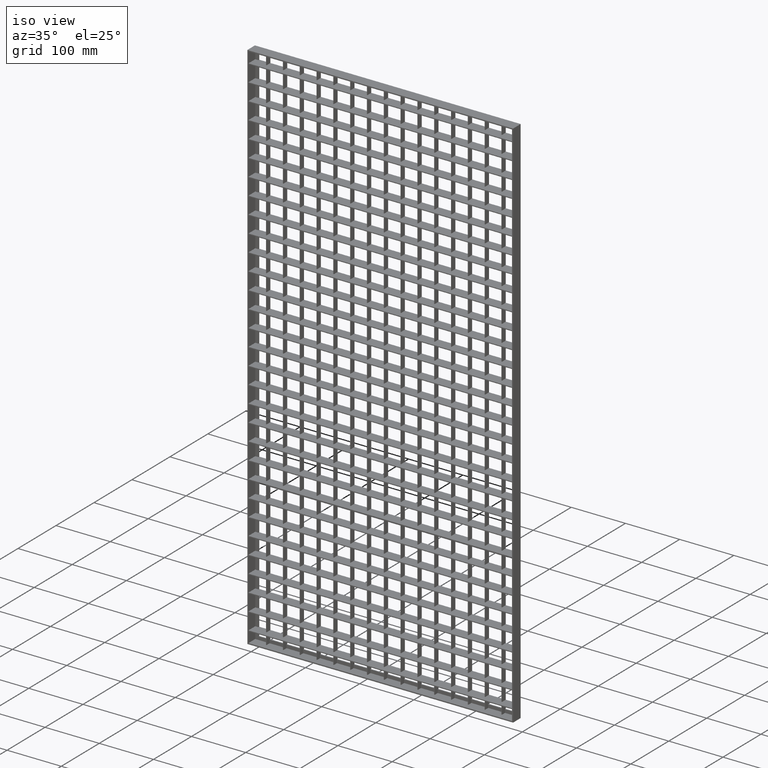
[diagram: clean part render]
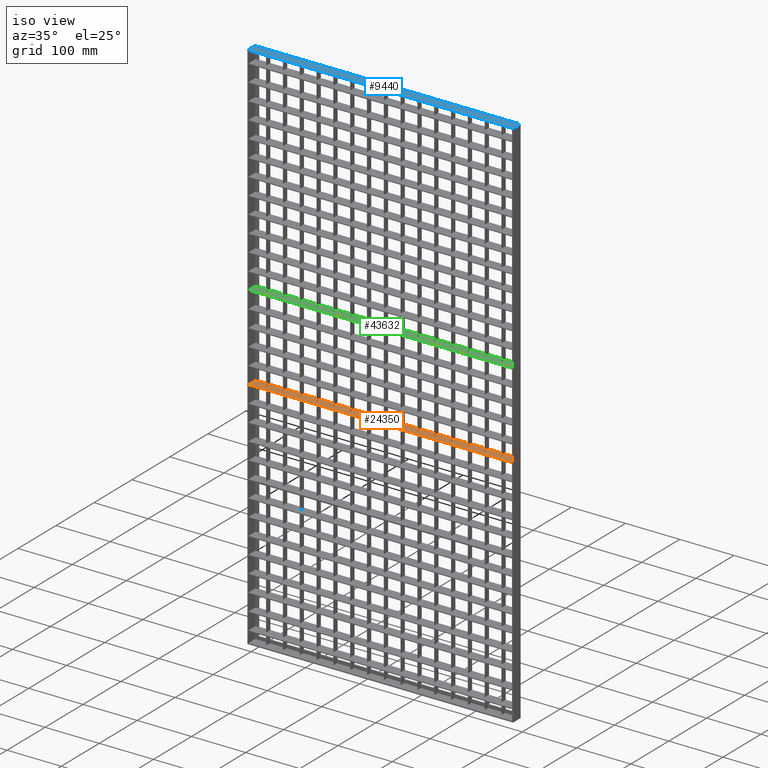
[diagram: same view with three faces highlighted in distinct colors, each labeled with its STEP entity id]
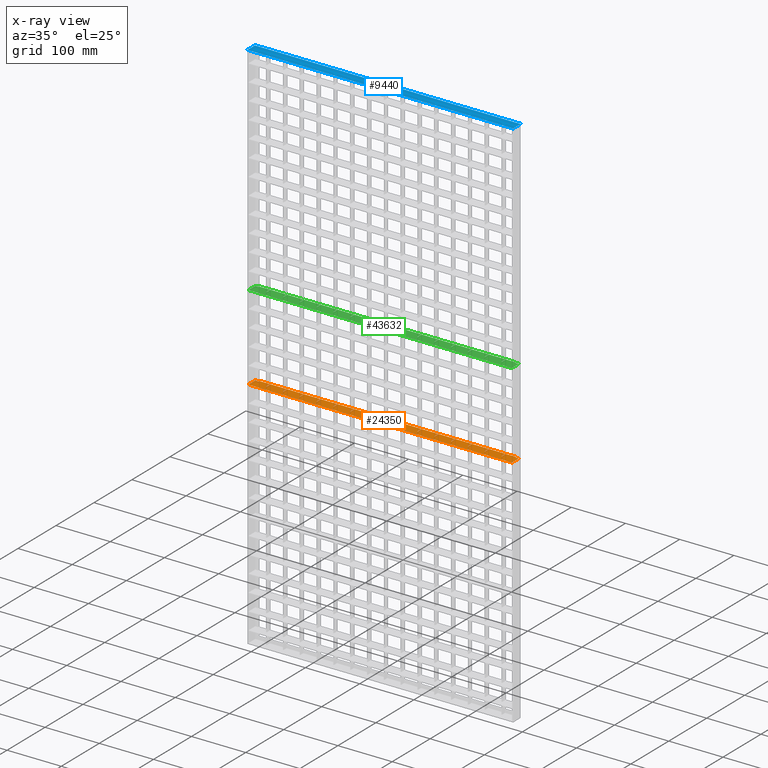
[diagram: x-ray of the same camera — body ghosted, the three highlighted faces saturated]
A machine part, iso view with three faces highlighted in distinct colors.
The next image is the same camera in x-ray (body ghosted, the three faces saturated) — at least one of them is partly hidden behind the body in this view.
Their STEP definitions:

[orange] entity #24350 — the highlighted planar face has unit normal (0, 0, -1).
#248 = EDGE_CURVE ( 'NONE', #6477, #38778, #3916, .T. ) ;
#251 = VECTOR ( 'NONE', #7613, 1000.000000000000000 ) ;
#465 = VECTOR ( 'NONE', #5854, 1000.000000000000000 ) ;
#773 = VERTEX_POINT ( 'NONE', #34400 ) ;
#1165 = VERTEX_POINT ( 'NONE', #53790 ) ;
#1192 = ORIENTED_EDGE ( 'NONE', *, *, #24387, .T. ) ;
#1215 = DIRECTION ( 'NONE',  ( -1.000000000000000000, 0.0000000000000000000, -0.0000000000000000000 ) ) ;
#1785 = CARTESIAN_POINT ( 'NONE',  ( 508.0561711201315800, 10.00000000000015500, -557.2499999999997700 ) ) ;
#1843 = ORIENTED_EDGE ( 'NONE', *, *, #6118, .T. ) ;
#1962 = VECTOR ( 'NONE', #13622, 1000.000000000000000 ) ;
#2046 = LINE ( 'NONE', #57114, #8941 ) ;
#2188 = VECTOR ( 'NONE', #59479, 1000.000000000000000 ) ;
#2278 = CARTESIAN_POINT ( 'NONE',  ( 152.4999999999999700, 1.734723475976807100E-015, -557.2499999999997700 ) ) ;
#2310 = LINE ( 'NONE', #30928, #52189 ) ;
#2687 = ORIENTED_EDGE ( 'NONE', *, *, #31207, .T. ) ;
#2730 = CARTESIAN_POINT ( 'NONE',  ( 508.0561711201315800, 10.00000000000015500, -557.2499999999997700 ) ) ;
#2912 = DIRECTION ( 'NONE',  ( -1.000000000000000000, -3.061616997868382600E-016, 0.0000000000000000000 ) ) ;
#3092 = LINE ( 'NONE', #16498, #465 ) ;
#3124 = DIRECTION ( 'NONE',  ( 0.0000000000000000000, 1.000000000000000000, 0.0000000000000000000 ) ) ;
#3167 = VERTEX_POINT ( 'NONE', #40476 ) ;
#3205 = LINE ( 'NONE', #36265, #44479 ) ;
#3212 = DIRECTION ( 'NONE',  ( -1.000000000000000000, -3.061616997868382600E-016, 0.0000000000000000000 ) ) ;
#3305 = EDGE_CURVE ( 'NONE', #56213, #48884, #53342, .T. ) ;
#3348 = VECTOR ( 'NONE', #37312, 1000.000000000000000 ) ;
#3522 = ORIENTED_EDGE ( 'NONE', *, *, #31626, .T. ) ;
#3652 = CARTESIAN_POINT ( 'NONE',  ( 307.5000000000000000, 6.872965936912012300E-016, -557.2499999999997700 ) ) ;
#3802 = EDGE_CURVE ( 'NONE', #39426, #21131, #38651, .T. ) ;
#3916 = LINE ( 'NONE', #13672, #52965 ) ;
#4097 = ORIENTED_EDGE ( 'NONE', *, *, #9103, .T. ) ;
#4148 = LINE ( 'NONE', #53836, #18832 ) ;
#4169 = VERTEX_POINT ( 'NONE', #50445 ) ;
#4277 = DIRECTION ( 'NONE',  ( -1.000000000000000000, -3.061616997868382600E-016, 0.0000000000000000000 ) ) ;
#4320 = DIRECTION ( 'NONE',  ( -1.000000000000000000, -3.061616997868382600E-016, 0.0000000000000000000 ) ) ;
#4471 = CARTESIAN_POINT ( 'NONE',  ( 151.5000000000000000, 10.00000000000000200, -557.2499999999998900 ) ) ;
#4667 = CARTESIAN_POINT ( 'NONE',  ( 337.5000000000000000, 2.229774192431455100E-015, -557.2499999999998900 ) ) ;
#4756 = ORIENTED_EDGE ( 'NONE', *, *, #49431, .T. ) ;
#4901 = LINE ( 'NONE', #14743, #14407 ) ;
#5032 = VECTOR ( 'NONE', #40760, 1000.000000000000000 ) ;
#5378 = ORIENTED_EDGE ( 'NONE', *, *, #36976, .T. ) ;
#5409 = CARTESIAN_POINT ( 'NONE',  ( 369.5000000000000600, -9.999999999999849000, -557.2499999999997700 ) ) ;
#5442 = LINE ( 'NONE', #33623, #58774 ) ;
#5460 = CARTESIAN_POINT ( 'NONE',  ( 508.0561711201315800, -2.255140518769849200E-014, -557.2499999999997700 ) ) ;
#5729 = EDGE_LOOP ( 'NONE', ( #35262, #44402, #45992, #33048, #52753, #69999, #59827, #18130, #63722, #41991, #41808, #4097, #14978, #66140, #29509, #52150, #39836, #38645, #30871, #51968, #20194, #35442, #34027, #39728, #10934, #68228, #27643, #70567, #4756, #66796, #52019, #38583, #20456, #8009, #40449, #40046, #69609, #7331, #10831, #2687, #50254, #48323, #6078, #46808, #24457, #23928, #42695, #56054, #12911, #3522, #1192, #32780, #10617, #39180, #5378, #1843, #57493, #44946, #8621, #66043, #9831, #42476, #36629, #31146, #53502, #61477, #36589, #23014 ) ) ;
#5854 = DIRECTION ( 'NONE',  ( 0.0000000000000000000, -1.000000000000000000, 0.0000000000000000000 ) ) ;
#5933 = VECTOR ( 'NONE', #4277, 1000.000000000000000 ) ;
#6078 = ORIENTED_EDGE ( 'NONE', *, *, #30492, .T. ) ;
#6115 = CARTESIAN_POINT ( 'NONE',  ( 508.0561711201315800, 9.194034422677077600E-014, -557.2499999999997700 ) ) ;
#6118 = EDGE_CURVE ( 'NONE', #17754, #32800, #56355, .T. ) ;
#6133 = LINE ( 'NONE', #40404, #31966 ) ;
#6477 = VERTEX_POINT ( 'NONE', #70483 ) ;
#7135 = LINE ( 'NONE', #40537, #251 ) ;
#7151 = VERTEX_POINT ( 'NONE', #61918 ) ;
#7172 = LINE ( 'NONE', #11091, #31249 ) ;
#7277 = VECTOR ( 'NONE', #40215, 1000.000000000000000 ) ;
#7331 = ORIENTED_EDGE ( 'NONE', *, *, #56871, .T. ) ;
#7422 = VECTOR ( 'NONE', #19426, 1000.000000000000000 ) ;
#7450 = DIRECTION ( 'NONE',  ( 0.0000000000000000000, 0.0000000000000000000, -1.000000000000000000 ) ) ;
#7613 = DIRECTION ( 'NONE',  ( 0.0000000000000000000, -1.000000000000000000, 0.0000000000000000000 ) ) ;
#7625 = CARTESIAN_POINT ( 'NONE',  ( 90.50000000000002800, 1.734723475976807100E-015, -557.2499999999997700 ) ) ;
#7731 = CARTESIAN_POINT ( 'NONE',  ( 488.0000000000000600, 8.000000000000001800, -557.2499999999997700 ) ) ;
#7791 = CARTESIAN_POINT ( 'NONE',  ( 369.5000000000000600, 7.872294426520972900E-016, -557.2499999999997700 ) ) ;
#7800 = VERTEX_POINT ( 'NONE', #67605 ) ;
#7928 = LINE ( 'NONE', #6115, #64703 ) ;
#8009 = ORIENTED_EDGE ( 'NONE', *, *, #9009, .T. ) ;
#8285 = EDGE_CURVE ( 'NONE', #3167, #60336, #31296, .T. ) ;
#8290 = VECTOR ( 'NONE', #48561, 1000.000000000000000 ) ;
#8336 = LINE ( 'NONE', #13646, #7422 ) ;
#8403 = LINE ( 'NONE', #35288, #37608 ) ;
#8606 = LINE ( 'NONE', #51491, #70504 ) ;
#8621 = ORIENTED_EDGE ( 'NONE', *, *, #52467, .T. ) ;
#8725 = LINE ( 'NONE', #19286, #25941 ) ;
#8744 = DIRECTION ( 'NONE',  ( 1.000000000000000000, 0.0000000000000000000, 0.0000000000000000000 ) ) ;
#8760 = CARTESIAN_POINT ( 'NONE',  ( 508.0561711201315800, 10.00000000000015500, -557.2499999999997700 ) ) ;
#8772 = VERTEX_POINT ( 'NONE', #4471 ) ;
#8787 = CARTESIAN_POINT ( 'NONE',  ( 7.999999999999996400, 8.000000000000001800, -557.2499999999997700 ) ) ;
#8820 = VERTEX_POINT ( 'NONE', #20383 ) ;
#8941 = VECTOR ( 'NONE', #56382, 1000.000000000000000 ) ;
#9009 = EDGE_CURVE ( 'NONE', #12745, #37281, #7928, .T. ) ;
#9103 = EDGE_CURVE ( 'NONE', #773, #22026, #52626, .T. ) ;
#9197 = CARTESIAN_POINT ( 'NONE',  ( 276.4999999999999400, 1.504691907199150600E-015, -557.2499999999997700 ) ) ;
#9228 = VERTEX_POINT ( 'NONE', #14994 ) ;
#9245 = CARTESIAN_POINT ( 'NONE',  ( 508.0561711201315800, -5.030698080332740600E-014, -557.2499999999997700 ) ) ;
#9374 = LINE ( 'NONE', #68095, #59227 ) ;
#9502 = EDGE_CURVE ( 'NONE', #52228, #40436, #29385, .T. ) ;
#9591 = CARTESIAN_POINT ( 'NONE',  ( 508.0561711201315800, -9.999999999999849000, -557.2499999999997700 ) ) ;
#9642 = VERTEX_POINT ( 'NONE', #57709 ) ;
#9821 = EDGE_CURVE ( 'NONE', #26080, #70954, #45649, .T. ) ;
#9831 = ORIENTED_EDGE ( 'NONE', *, *, #12129, .F. ) ;
#9972 = CARTESIAN_POINT ( 'NONE',  ( 213.4999999999999700, 1.758526193928528200E-015, -557.2499999999997700 ) ) ;
#9988 = VERTEX_POINT ( 'NONE', #49508 ) ;
#10127 = CARTESIAN_POINT ( 'NONE',  ( 90.50000000000002800, -9.999999999999849000, -557.2499999999997700 ) ) ;
#10344 = LINE ( 'NONE', #63605, #33517 ) ;
#10617 = ORIENTED_EDGE ( 'NONE', *, *, #64804, .T. ) ;
#10628 = CARTESIAN_POINT ( 'NONE',  ( 307.5000000000000000, 10.00000000000009400, -557.2499999999997700 ) ) ;
#10831 = ORIENTED_EDGE ( 'NONE', *, *, #71077, .T. ) ;
#10872 = CARTESIAN_POINT ( 'NONE',  ( 121.5000000000000000, 10.00000000000003700, -557.2499999999997700 ) ) ;
#10934 = ORIENTED_EDGE ( 'NONE', *, *, #13315, .F. ) ;
#10980 = LINE ( 'NONE', #15171, #20430 ) ;
#11059 = EDGE_CURVE ( 'NONE', #13045, #68383, #10980, .T. ) ;
#11091 = CARTESIAN_POINT ( 'NONE',  ( 508.0561711201315800, 1.196959198423996900E-013, -557.2499999999997700 ) ) ;
#11167 = VECTOR ( 'NONE', #19999, 1000.000000000000000 ) ;
#11416 = VECTOR ( 'NONE', #46839, 1000.000000000000000 ) ;
#11615 = LINE ( 'NONE', #53952, #2188 ) ;
#11886 = CARTESIAN_POINT ( 'NONE',  ( 399.4999999999999400, 2.229774192431455100E-015, -557.2499999999997700 ) ) ;
#12129 = EDGE_CURVE ( 'NONE', #42568, #21131, #67685, .T. ) ;
#12219 = DIRECTION ( 'NONE',  ( 0.0000000000000000000, -1.000000000000000000, 0.0000000000000000000 ) ) ;
#12557 = CARTESIAN_POINT ( 'NONE',  ( 120.5000000000000000, 1.041063729381511900E-015, -557.2499999999997700 ) ) ;
#12745 = VERTEX_POINT ( 'NONE', #36114 ) ;
#12746 = VERTEX_POINT ( 'NONE', #64492 ) ;
#12809 = DIRECTION ( 'NONE',  ( 0.0000000000000000000, -1.000000000000000000, 0.0000000000000000000 ) ) ;
#12900 = CARTESIAN_POINT ( 'NONE',  ( 369.5000000000000600, 10.00000000000011400, -557.2499999999997700 ) ) ;
#12911 = ORIENTED_EDGE ( 'NONE', *, *, #27504, .T. ) ;
#12990 = VECTOR ( 'NONE', #32024, 1000.000000000000000 ) ;
#13005 = DIRECTION ( 'NONE',  ( -1.000000000000000000, -3.061616997868381700E-016, 0.0000000000000000000 ) ) ;
#13045 = VERTEX_POINT ( 'NONE', #10872 ) ;
#13146 = VERTEX_POINT ( 'NONE', #62041 ) ;
#13315 = EDGE_CURVE ( 'NONE', #47760, #8820, #22311, .T. ) ;
#13410 = EDGE_CURVE ( 'NONE', #42092, #6477, #20590, .T. ) ;
#13622 = DIRECTION ( 'NONE',  ( 0.0000000000000000000, 1.000000000000000000, 0.0000000000000000000 ) ) ;
#13646 = CARTESIAN_POINT ( 'NONE',  ( 28.49999999999997200, -9.999999999999849000, -557.2499999999997700 ) ) ;
#13672 = CARTESIAN_POINT ( 'NONE',  ( 2.000000000000003600, -10.00000000000000000, -557.2499999999997700 ) ) ;
#13844 = VECTOR ( 'NONE', #32783, 1000.000000000000000 ) ;
#13976 = VECTOR ( 'NONE', #31961, 1000.000000000000000 ) ;
#13978 = CARTESIAN_POINT ( 'NONE',  ( 306.5000000000000000, 2.229774192431455100E-015, -557.2499999999998900 ) ) ;
#14040 = LINE ( 'NONE', #68520, #25191 ) ;
#14103 = DIRECTION ( 'NONE',  ( 0.0000000000000000000, -1.000000000000000000, 0.0000000000000000000 ) ) ;
#14407 = VECTOR ( 'NONE', #8744, 1000.000000000000000 ) ;
#14425 = DIRECTION ( 'NONE',  ( -1.000000000000000000, -3.061616997868382600E-016, 0.0000000000000000000 ) ) ;
#14743 = CARTESIAN_POINT ( 'NONE',  ( 2.000000000000003600, 8.000000000000001800, -557.2499999999997700 ) ) ;
#14765 = VECTOR ( 'NONE', #38533, 1000.000000000000000 ) ;
#14837 = DIRECTION ( 'NONE',  ( -1.000000000000000000, -3.061616997868381200E-016, 0.0000000000000000000 ) ) ;
#14978 = ORIENTED_EDGE ( 'NONE', *, *, #70001, .F. ) ;
#14994 = CARTESIAN_POINT ( 'NONE',  ( 338.5000000000000000, 10.00000000000010300, -557.2499999999997700 ) ) ;
#15022 = LINE ( 'NONE', #67160, #7277 ) ;
#15062 = CARTESIAN_POINT ( 'NONE',  ( 508.0561711201315800, 8.153200337090993300E-014, -557.2499999999997700 ) ) ;
#15155 = VECTOR ( 'NONE', #13005, 1000.000000000000000 ) ;
#15171 = CARTESIAN_POINT ( 'NONE',  ( 121.5000000000000000, -9.999999999999849000, -557.2499999999997700 ) ) ;
#15389 = CARTESIAN_POINT ( 'NONE',  ( 28.49999999999997200, 1.734723475976807100E-015, -557.2499999999997700 ) ) ;
#15660 = VERTEX_POINT ( 'NONE', #28246 ) ;
#15661 = LINE ( 'NONE', #59505, #23389 ) ;
#15706 = LINE ( 'NONE', #25661, #11416 ) ;
#15755 = VERTEX_POINT ( 'NONE', #2278 ) ;
#16370 = EDGE_CURVE ( 'NONE', #9988, #4169, #14040, .T. ) ;
#16444 = DIRECTION ( 'NONE',  ( -1.000000000000000000, -3.061616997868382600E-016, 0.0000000000000000000 ) ) ;
#16498 = CARTESIAN_POINT ( 'NONE',  ( 183.5000000000000000, -9.999999999999849000, -557.2499999999997700 ) ) ;
#16567 = CARTESIAN_POINT ( 'NONE',  ( 244.5000000000000000, -9.999999999999849000, -557.2499999999997700 ) ) ;
#16604 = EDGE_CURVE ( 'NONE', #12746, #7800, #33808, .T. ) ;
#17157 = DIRECTION ( 'NONE',  ( 0.0000000000000000000, 1.000000000000000000, 0.0000000000000000000 ) ) ;
#17286 = CARTESIAN_POINT ( 'NONE',  ( 89.49999999999997200, 1.958391891850345000E-015, -557.2499999999997700 ) ) ;
#17527 = CARTESIAN_POINT ( 'NONE',  ( 59.50000000000000000, 1.734723475976807100E-015, -557.2499999999997700 ) ) ;
#17754 = VERTEX_POINT ( 'NONE', #26161 ) ;
#17825 = VECTOR ( 'NONE', #38821, 1000.000000000000000 ) ;
#18125 = LINE ( 'NONE', #67124, #45615 ) ;
#18130 = ORIENTED_EDGE ( 'NONE', *, *, #9502, .T. ) ;
#18283 = VERTEX_POINT ( 'NONE', #65304 ) ;
#18466 = CARTESIAN_POINT ( 'NONE',  ( 508.0561711201315800, -6.938893903907228400E-014, -557.2499999999997700 ) ) ;
#18636 = CARTESIAN_POINT ( 'NONE',  ( 482.0000000000001100, 8.000000000000001800, -557.2499999999997700 ) ) ;
#18832 = VECTOR ( 'NONE', #4320, 1000.000000000000000 ) ;
#18850 = VERTEX_POINT ( 'NONE', #4667 ) ;
#19250 = CARTESIAN_POINT ( 'NONE',  ( 27.49999999999996800, 2.058324740811253300E-015, -557.2499999999997700 ) ) ;
#19267 = EDGE_CURVE ( 'NONE', #52228, #67762, #15706, .T. ) ;
#19286 = CARTESIAN_POINT ( 'NONE',  ( 245.0000000000000000, 8.000000000000001800, -557.2499999999997700 ) ) ;
#19320 = DIRECTION ( 'NONE',  ( -1.000000000000000000, -3.061616997868382600E-016, 0.0000000000000000000 ) ) ;
#19352 = LINE ( 'NONE', #18636, #61460 ) ;
#19426 = DIRECTION ( 'NONE',  ( 0.0000000000000000000, -1.000000000000000000, 0.0000000000000000000 ) ) ;
#19796 = VECTOR ( 'NONE', #3124, 1000.000000000000000 ) ;
#19972 = EDGE_CURVE ( 'NONE', #64606, #15755, #56006, .T. ) ;
#19999 = DIRECTION ( 'NONE',  ( 0.0000000000000000000, -1.000000000000000000, 0.0000000000000000000 ) ) ;
#20029 = VECTOR ( 'NONE', #47684, 1000.000000000000000 ) ;
#20194 = ORIENTED_EDGE ( 'NONE', *, *, #45937, .F. ) ;
#20323 = VECTOR ( 'NONE', #14837, 1000.000000000000000 ) ;
#20372 = CARTESIAN_POINT ( 'NONE',  ( 430.5000000000000000, 10.00000000000013000, -557.2499999999997700 ) ) ;
#20383 = CARTESIAN_POINT ( 'NONE',  ( 276.4999999999999400, 10.00000000000008300, -557.2499999999997700 ) ) ;
#20430 = VECTOR ( 'NONE', #42985, 1000.000000000000000 ) ;
#20456 = ORIENTED_EDGE ( 'NONE', *, *, #25584, .T. ) ;
#20590 = LINE ( 'NONE', #9591, #5933 ) ;
#21131 = VERTEX_POINT ( 'NONE', #57635 ) ;
#21461 = VERTEX_POINT ( 'NONE', #69195 ) ;
#21949 = EDGE_CURVE ( 'NONE', #42092, #67398, #57537, .T. ) ;
#22026 = VERTEX_POINT ( 'NONE', #12900 ) ;
#22055 = CARTESIAN_POINT ( 'NONE',  ( 7.999999999999996400, 8.000000000000001800, -557.2499999999997700 ) ) ;
#22117 = CARTESIAN_POINT ( 'NONE',  ( 368.5000000000000600, -9.999999999999849000, -557.2499999999997700 ) ) ;
#22311 = LINE ( 'NONE', #36036, #19796 ) ;
#22763 = EDGE_CURVE ( 'NONE', #38778, #42568, #4901, .T. ) ;
#22774 = DIRECTION ( 'NONE',  ( 1.000000000000000000, -3.061616997868381700E-016, 0.0000000000000000000 ) ) ;
#22852 = CARTESIAN_POINT ( 'NONE',  ( 508.0561711201315800, 1.110223024625156500E-013, -557.2499999999997700 ) ) ;
#23014 = ORIENTED_EDGE ( 'NONE', *, *, #65551, .T. ) ;
#23201 = EDGE_CURVE ( 'NONE', #37281, #9988, #58999, .T. ) ;
#23227 = VECTOR ( 'NONE', #2912, 1000.000000000000000 ) ;
#23269 = CARTESIAN_POINT ( 'NONE',  ( 338.5000000000000000, 1.604624756160052900E-015, -557.2499999999997700 ) ) ;
#23322 = EDGE_CURVE ( 'NONE', #54649, #54893, #43446, .T. ) ;
#23389 = VECTOR ( 'NONE', #53256, 1000.000000000000000 ) ;
#23879 = CARTESIAN_POINT ( 'NONE',  ( 2.000000000000003600, 8.000000000000001800, -557.2499999999997700 ) ) ;
#23928 = ORIENTED_EDGE ( 'NONE', *, *, #28777, .T. ) ;
#24049 = CARTESIAN_POINT ( 'NONE',  ( 508.0561711201315800, -9.999999999999849000, -557.2499999999997700 ) ) ;
#24350 = ADVANCED_FACE ( 'NONE', ( #46549 ), #34847, .F. ) ;
#24387 = EDGE_CURVE ( 'NONE', #61673, #12746, #32848, .T. ) ;
#24457 = ORIENTED_EDGE ( 'NONE', *, *, #11059, .T. ) ;
#24480 = EDGE_CURVE ( 'NONE', #53371, #47760, #31040, .T. ) ;
#24521 = CARTESIAN_POINT ( 'NONE',  ( 337.5000000000000000, 10.00000000000010300, -557.2499999999997700 ) ) ;
#24789 = DIRECTION ( 'NONE',  ( 1.000000000000000000, 0.0000000000000000000, 0.0000000000000000000 ) ) ;
#24924 = CARTESIAN_POINT ( 'NONE',  ( 58.50000000000000000, -9.999999999999849000, -557.2499999999997700 ) ) ;
#24940 = DIRECTION ( 'NONE',  ( 0.0000000000000000000, 1.000000000000000000, 0.0000000000000000000 ) ) ;
#25108 = CARTESIAN_POINT ( 'NONE',  ( 508.0561711201315800, 10.00000000000015500, -557.2499999999997700 ) ) ;
#25163 = DIRECTION ( 'NONE',  ( 0.0000000000000000000, 1.000000000000000000, 0.0000000000000000000 ) ) ;
#25191 = VECTOR ( 'NONE', #52430, 1000.000000000000000 ) ;
#25506 = VECTOR ( 'NONE', #54964, 1000.000000000000000 ) ;
#25584 = EDGE_CURVE ( 'NONE', #48884, #12745, #27507, .T. ) ;
#25661 = CARTESIAN_POINT ( 'NONE',  ( 430.5000000000000000, -9.999999999999849000, -557.2499999999997700 ) ) ;
#25861 = LINE ( 'NONE', #64485, #12990 ) ;
#25941 = VECTOR ( 'NONE', #24789, 1000.000000000000000 ) ;
#26080 = VERTEX_POINT ( 'NONE', #43813 ) ;
#26161 = CARTESIAN_POINT ( 'NONE',  ( 58.50000000000000000, 10.00000000000000200, -557.2499999999997700 ) ) ;
#26241 = EDGE_CURVE ( 'NONE', #44598, #55444, #9374, .T. ) ;
#26267 = CARTESIAN_POINT ( 'NONE',  ( 182.4999999999999400, 9.411308804205788300E-016, -557.2499999999997700 ) ) ;
#26675 = VECTOR ( 'NONE', #33353, 1000.000000000000000 ) ;
#26708 = LINE ( 'NONE', #38526, #13844 ) ;
#27004 = CARTESIAN_POINT ( 'NONE',  ( 508.0561711201315800, 10.00000000000015500, -557.2499999999997700 ) ) ;
#27300 = EDGE_CURVE ( 'NONE', #67762, #7151, #34072, .T. ) ;
#27310 = EDGE_CURVE ( 'NONE', #13146, #56213, #55555, .T. ) ;
#27504 = EDGE_CURVE ( 'NONE', #50206, #54027, #42649, .T. ) ;
#27507 = LINE ( 'NONE', #55193, #26675 ) ;
#27587 = EDGE_CURVE ( 'NONE', #43874, #50206, #43481, .T. ) ;
#27643 = ORIENTED_EDGE ( 'NONE', *, *, #30869, .F. ) ;
#27841 = VECTOR ( 'NONE', #55733, 1000.000000000000000 ) ;
#27984 = CARTESIAN_POINT ( 'NONE',  ( 151.4999999999999700, 1.858459042889448800E-015, -557.2499999999997700 ) ) ;
#28009 = DIRECTION ( 'NONE',  ( -1.000000000000000000, -3.061616997868381200E-016, 0.0000000000000000000 ) ) ;
#28246 = CARTESIAN_POINT ( 'NONE',  ( 183.5000000000000000, 1.734723475976807100E-015, -557.2499999999997700 ) ) ;
#28358 = EDGE_CURVE ( 'NONE', #62838, #1165, #19352, .T. ) ;
#28777 = EDGE_CURVE ( 'NONE', #68383, #57583, #7172, .T. ) ;
#29351 = CARTESIAN_POINT ( 'NONE',  ( 508.0561711201315800, 1.387778780781445700E-013, -557.2499999999997700 ) ) ;
#29361 = DIRECTION ( 'NONE',  ( -1.000000000000000000, -3.061616997868382600E-016, 0.0000000000000000000 ) ) ;
#29385 = LINE ( 'NONE', #49352, #14765 ) ;
#29509 = ORIENTED_EDGE ( 'NONE', *, *, #8285, .F. ) ;
#29746 = VECTOR ( 'NONE', #53631, 1000.000000000000000 ) ;
#30127 = DIRECTION ( 'NONE',  ( 0.0000000000000000000, -1.000000000000000000, 0.0000000000000000000 ) ) ;
#30492 = EDGE_CURVE ( 'NONE', #60399, #8772, #10344, .T. ) ;
#30776 = CARTESIAN_POINT ( 'NONE',  ( 275.4999999999999400, 2.229774192431455100E-015, -557.2499999999998900 ) ) ;
#30869 = EDGE_CURVE ( 'NONE', #44598, #53371, #44652, .T. ) ;
#30871 = ORIENTED_EDGE ( 'NONE', *, *, #57580, .F. ) ;
#30928 = CARTESIAN_POINT ( 'NONE',  ( 307.5000000000000000, -9.999999999999849000, -557.2499999999997700 ) ) ;
#31040 = LINE ( 'NONE', #18466, #69708 ) ;
#31128 = CARTESIAN_POINT ( 'NONE',  ( 152.4999999999999700, -9.999999999999849000, -557.2499999999997700 ) ) ;
#31146 = ORIENTED_EDGE ( 'NONE', *, *, #13410, .F. ) ;
#31207 = EDGE_CURVE ( 'NONE', #37413, #64606, #4148, .T. ) ;
#31249 = VECTOR ( 'NONE', #38961, 1000.000000000000000 ) ;
#31274 = CARTESIAN_POINT ( 'NONE',  ( 306.5000000000000000, -9.999999999999849000, -557.2499999999997700 ) ) ;
#31296 = LINE ( 'NONE', #22117, #53638 ) ;
#31598 = CARTESIAN_POINT ( 'NONE',  ( 214.5000000000000300, 10.00000000000006400, -557.2499999999997700 ) ) ;
#31626 = EDGE_CURVE ( 'NONE', #54027, #61673, #8403, .T. ) ;
#31961 = DIRECTION ( 'NONE',  ( -1.000000000000000000, -3.061616997868382600E-016, 0.0000000000000000000 ) ) ;
#31966 = VECTOR ( 'NONE', #29361, 1000.000000000000000 ) ;
#32024 = DIRECTION ( 'NONE',  ( 0.0000000000000000000, -1.000000000000000000, 0.0000000000000000000 ) ) ;
#32182 = CARTESIAN_POINT ( 'NONE',  ( 90.50000000000002800, 10.00000000000002700, -557.2499999999997700 ) ) ;
#32780 = ORIENTED_EDGE ( 'NONE', *, *, #16604, .T. ) ;
#32783 = DIRECTION ( 'NONE',  ( -1.000000000000000000, -3.061616997868381700E-016, 0.0000000000000000000 ) ) ;
#32800 = VERTEX_POINT ( 'NONE', #41540 ) ;
#32839 = VERTEX_POINT ( 'NONE', #19250 ) ;
#32848 = LINE ( 'NONE', #67074, #37107 ) ;
#33048 = ORIENTED_EDGE ( 'NONE', *, *, #40755, .T. ) ;
#33230 = VECTOR ( 'NONE', #37375, 1000.000000000000000 ) ;
#33296 = VERTEX_POINT ( 'NONE', #46505 ) ;
#33353 = DIRECTION ( 'NONE',  ( 0.0000000000000000000, -1.000000000000000000, 0.0000000000000000000 ) ) ;
#33438 = CARTESIAN_POINT ( 'NONE',  ( 27.49999999999999600, 10.00000000000000200, -557.2499999999997700 ) ) ;
#33517 = VECTOR ( 'NONE', #41919, 1000.000000000000000 ) ;
#33623 = CARTESIAN_POINT ( 'NONE',  ( 59.50000000000000000, -9.999999999999849000, -557.2499999999997700 ) ) ;
#33808 = LINE ( 'NONE', #63972, #13976 ) ;
#33830 = EDGE_CURVE ( 'NONE', #57071, #63129, #54450, .T. ) ;
#34027 = ORIENTED_EDGE ( 'NONE', *, *, #9821, .F. ) ;
#34069 = DIRECTION ( 'NONE',  ( 1.000000000000000000, -3.061616997868381200E-016, 0.0000000000000000000 ) ) ;
#34072 = LINE ( 'NONE', #5460, #52152 ) ;
#34081 = LINE ( 'NONE', #1785, #40958 ) ;
#34400 = CARTESIAN_POINT ( 'NONE',  ( 399.4999999999999400, 10.00000000000012100, -557.2499999999997700 ) ) ;
#34788 = EDGE_CURVE ( 'NONE', #18850, #46875, #53491, .T. ) ;
#34847 = PLANE ( 'NONE',  #49363 ) ;
#35197 = VECTOR ( 'NONE', #50109, 1000.000000000000000 ) ;
#35262 = ORIENTED_EDGE ( 'NONE', *, *, #47508, .F. ) ;
#35288 = CARTESIAN_POINT ( 'NONE',  ( 508.0561711201315800, 1.301042606982605300E-013, -557.2499999999997700 ) ) ;
#35412 = VECTOR ( 'NONE', #14103, 1000.000000000000000 ) ;
#35442 = ORIENTED_EDGE ( 'NONE', *, *, #41917, .F. ) ;
#35571 = CARTESIAN_POINT ( 'NONE',  ( 244.5000000000000000, 10.00000000000000200, -557.2499999999998900 ) ) ;
#35812 = LINE ( 'NONE', #38425, #70203 ) ;
#36036 = CARTESIAN_POINT ( 'NONE',  ( 276.4999999999999400, -9.999999999999849000, -557.2499999999997700 ) ) ;
#36114 = CARTESIAN_POINT ( 'NONE',  ( 214.5000000000000300, 1.734723475976807100E-015, -557.2499999999997700 ) ) ;
#36265 = CARTESIAN_POINT ( 'NONE',  ( 508.0561711201315800, 10.00000000000015500, -557.2499999999997700 ) ) ;
#36589 = ORIENTED_EDGE ( 'NONE', *, *, #28358, .F. ) ;
#36629 = ORIENTED_EDGE ( 'NONE', *, *, #248, .F. ) ;
#36976 = EDGE_CURVE ( 'NONE', #54893, #17754, #60450, .T. ) ;
#37107 = VECTOR ( 'NONE', #62281, 1000.000000000000000 ) ;
#37281 = VERTEX_POINT ( 'NONE', #9972 ) ;
#37312 = DIRECTION ( 'NONE',  ( 1.000000000000000000, -3.061616997868381700E-016, 0.0000000000000000000 ) ) ;
#37375 = DIRECTION ( 'NONE',  ( -1.000000000000000000, -3.061616997868382600E-016, 0.0000000000000000000 ) ) ;
#37413 = VERTEX_POINT ( 'NONE', #71243 ) ;
#37608 = VECTOR ( 'NONE', #41524, 1000.000000000000000 ) ;
#38425 = CARTESIAN_POINT ( 'NONE',  ( 338.5000000000000000, -9.999999999999849000, -557.2499999999997700 ) ) ;
#38526 = CARTESIAN_POINT ( 'NONE',  ( 508.0561711201315800, 1.491862189340054100E-013, -557.2499999999997700 ) ) ;
#38533 = DIRECTION ( 'NONE',  ( -1.000000000000000000, -3.061616997868382600E-016, 0.0000000000000000000 ) ) ;
#38583 = ORIENTED_EDGE ( 'NONE', *, *, #3305, .T. ) ;
#38600 = CARTESIAN_POINT ( 'NONE',  ( 120.5000000000000000, 10.00000000000000200, -557.2499999999998900 ) ) ;
#38645 = ORIENTED_EDGE ( 'NONE', *, *, #34788, .F. ) ;
#38651 = LINE ( 'NONE', #46173, #23227 ) ;
#38723 = VECTOR ( 'NONE', #3212, 1000.000000000000000 ) ;
#38778 = VERTEX_POINT ( 'NONE', #23879 ) ;
#38821 = DIRECTION ( 'NONE',  ( 0.0000000000000000000, 1.000000000000000000, 0.0000000000000000000 ) ) ;
#38961 = DIRECTION ( 'NONE',  ( -1.000000000000000000, -3.061616997868381200E-016, 0.0000000000000000000 ) ) ;
#39180 = ORIENTED_EDGE ( 'NONE', *, *, #23322, .T. ) ;
#39302 = CARTESIAN_POINT ( 'NONE',  ( 27.49999999999996800, -9.999999999999849000, -557.2499999999997700 ) ) ;
#39426 = VERTEX_POINT ( 'NONE', #33438 ) ;
#39485 = LINE ( 'NONE', #47184, #3348 ) ;
#39728 = ORIENTED_EDGE ( 'NONE', *, *, #45514, .T. ) ;
#39836 = ORIENTED_EDGE ( 'NONE', *, *, #61519, .F. ) ;
#40046 = ORIENTED_EDGE ( 'NONE', *, *, #16370, .T. ) ;
#40114 = LINE ( 'NONE', #8760, #71069 ) ;
#40215 = DIRECTION ( 'NONE',  ( 0.0000000000000000000, 1.000000000000000000, 0.0000000000000000000 ) ) ;
#40404 = CARTESIAN_POINT ( 'NONE',  ( 508.0561711201315800, 10.00000000000015500, -557.2499999999997700 ) ) ;
#40436 = VERTEX_POINT ( 'NONE', #64812 ) ;
#40449 = ORIENTED_EDGE ( 'NONE', *, *, #23201, .T. ) ;
#40476 = CARTESIAN_POINT ( 'NONE',  ( 368.5000000000000600, 10.00000000000011200, -557.2499999999997700 ) ) ;
#40537 = CARTESIAN_POINT ( 'NONE',  ( 461.5000000000000000, -9.999999999999849000, -557.2499999999997700 ) ) ;
#40755 = EDGE_CURVE ( 'NONE', #18283, #54520, #34081, .T. ) ;
#40760 = DIRECTION ( 'NONE',  ( 0.0000000000000000000, 1.000000000000000000, 0.0000000000000000000 ) ) ;
#40929 = LINE ( 'NONE', #41497, #59015 ) ;
#40958 = VECTOR ( 'NONE', #57517, 1000.000000000000000 ) ;
#41497 = CARTESIAN_POINT ( 'NONE',  ( 120.5000000000000000, -9.999999999999849000, -557.2499999999997700 ) ) ;
#41524 = DIRECTION ( 'NONE',  ( -1.000000000000000000, -3.061616997868381700E-016, 0.0000000000000000000 ) ) ;
#41540 = CARTESIAN_POINT ( 'NONE',  ( 28.50000000000002500, 10.00000000000000700, -557.2499999999997700 ) ) ;
#41808 = ORIENTED_EDGE ( 'NONE', *, *, #58969, .F. ) ;
#41917 = EDGE_CURVE ( 'NONE', #70954, #44758, #2046, .T. ) ;
#41919 = DIRECTION ( 'NONE',  ( 0.0000000000000000000, 1.000000000000000000, 0.0000000000000000000 ) ) ;
#41991 = ORIENTED_EDGE ( 'NONE', *, *, #33830, .F. ) ;
#42002 = EDGE_CURVE ( 'NONE', #18283, #9642, #7135, .T. ) ;
#42011 = EDGE_CURVE ( 'NONE', #60336, #62549, #44983, .T. ) ;
#42092 = VERTEX_POINT ( 'NONE', #63401 ) ;
#42476 = ORIENTED_EDGE ( 'NONE', *, *, #22763, .F. ) ;
#42568 = VERTEX_POINT ( 'NONE', #22055 ) ;
#42649 = LINE ( 'NONE', #10127, #8290 ) ;
#42695 = ORIENTED_EDGE ( 'NONE', *, *, #63447, .T. ) ;
#42985 = DIRECTION ( 'NONE',  ( 0.0000000000000000000, -1.000000000000000000, 0.0000000000000000000 ) ) ;
#43446 = LINE ( 'NONE', #29351, #15155 ) ;
#43481 = LINE ( 'NONE', #70197, #29746 ) ;
#43813 = CARTESIAN_POINT ( 'NONE',  ( 306.5000000000000000, 10.00000000000009200, -557.2499999999997700 ) ) ;
#43835 = LINE ( 'NONE', #47823, #11167 ) ;
#43874 = VERTEX_POINT ( 'NONE', #38600 ) ;
#44402 = ORIENTED_EDGE ( 'NONE', *, *, #52803, .F. ) ;
#44479 = VECTOR ( 'NONE', #14425, 1000.000000000000000 ) ;
#44598 = VERTEX_POINT ( 'NONE', #62596 ) ;
#44652 = LINE ( 'NONE', #67612, #58403 ) ;
#44672 = VECTOR ( 'NONE', #45431, 1000.000000000000000 ) ;
#44758 = VERTEX_POINT ( 'NONE', #3652 ) ;
#44817 = CARTESIAN_POINT ( 'NONE',  ( 121.5000000000000000, 1.734723475976807100E-015, -557.2499999999997700 ) ) ;
#44946 = ORIENTED_EDGE ( 'NONE', *, *, #57302, .T. ) ;
#44983 = LINE ( 'NONE', #67717, #56149 ) ;
#45404 = VERTEX_POINT ( 'NONE', #24521 ) ;
#45431 = DIRECTION ( 'NONE',  ( -1.000000000000000000, -3.061616997868381200E-016, 0.0000000000000000000 ) ) ;
#45514 = EDGE_CURVE ( 'NONE', #26080, #8820, #3205, .T. ) ;
#45598 = LINE ( 'NONE', #22852, #44672 ) ;
#45600 = CARTESIAN_POINT ( 'NONE',  ( 400.4999999999999400, 1.704557605120992000E-015, -557.2499999999997700 ) ) ;
#45615 = VECTOR ( 'NONE', #17157, 1000.000000000000000 ) ;
#45649 = LINE ( 'NONE', #31274, #58533 ) ;
#45717 = VECTOR ( 'NONE', #62640, 1000.000000000000000 ) ;
#45937 = EDGE_CURVE ( 'NONE', #44758, #49477, #2310, .T. ) ;
#45992 = ORIENTED_EDGE ( 'NONE', *, *, #42002, .F. ) ;
#46116 = EDGE_CURVE ( 'NONE', #46315, #13146, #69336, .T. ) ;
#46173 = CARTESIAN_POINT ( 'NONE',  ( 508.0561711201315800, 10.00000000000015500, -557.2499999999997700 ) ) ;
#46315 = VERTEX_POINT ( 'NONE', #50586 ) ;
#46505 = CARTESIAN_POINT ( 'NONE',  ( 462.5000000000000000, 10.00000000000014000, -557.2499999999997700 ) ) ;
#46549 = FACE_OUTER_BOUND ( 'NONE', #5729, .T. ) ;
#46808 = ORIENTED_EDGE ( 'NONE', *, *, #70348, .T. ) ;
#46839 = DIRECTION ( 'NONE',  ( 0.0000000000000000000, -1.000000000000000000, 0.0000000000000000000 ) ) ;
#46875 = VERTEX_POINT ( 'NONE', #23269 ) ;
#47184 = CARTESIAN_POINT ( 'NONE',  ( 508.0561711201315800, -1.214306433183765000E-014, -557.2499999999997700 ) ) ;
#47308 = EDGE_CURVE ( 'NONE', #63129, #40436, #11615, .T. ) ;
#47449 = DIRECTION ( 'NONE',  ( 0.0000000000000000000, 1.000000000000000000, 0.0000000000000000000 ) ) ;
#47508 = EDGE_CURVE ( 'NONE', #21461, #33296, #15022, .T. ) ;
#47684 = DIRECTION ( 'NONE',  ( 1.000000000000000000, -3.061616997868381200E-016, 0.0000000000000000000 ) ) ;
#47760 = VERTEX_POINT ( 'NONE', #9197 ) ;
#47806 = CARTESIAN_POINT ( 'NONE',  ( 182.5000000000000000, -9.999999999999849000, -557.2499999999997700 ) ) ;
#47823 = CARTESIAN_POINT ( 'NONE',  ( 399.4999999999999400, -9.999999999999849000, -557.2499999999997700 ) ) ;
#48323 = ORIENTED_EDGE ( 'NONE', *, *, #49734, .T. ) ;
#48561 = DIRECTION ( 'NONE',  ( 0.0000000000000000000, -1.000000000000000000, 0.0000000000000000000 ) ) ;
#48884 = VERTEX_POINT ( 'NONE', #31598 ) ;
#49352 = CARTESIAN_POINT ( 'NONE',  ( 508.0561711201315800, 10.00000000000015500, -557.2499999999997700 ) ) ;
#49363 = AXIS2_PLACEMENT_3D ( 'NONE', #24049, #7450, #1215 ) ;
#49431 = EDGE_CURVE ( 'NONE', #55444, #46315, #25861, .T. ) ;
#49477 = VERTEX_POINT ( 'NONE', #10628 ) ;
#49508 = CARTESIAN_POINT ( 'NONE',  ( 213.5000000000000000, 10.00000000000000200, -557.2499999999998900 ) ) ;
#49734 = EDGE_CURVE ( 'NONE', #15755, #60399, #45598, .T. ) ;
#50109 = DIRECTION ( 'NONE',  ( 0.0000000000000000000, 1.000000000000000000, 0.0000000000000000000 ) ) ;
#50206 = VERTEX_POINT ( 'NONE', #32182 ) ;
#50254 = ORIENTED_EDGE ( 'NONE', *, *, #19972, .T. ) ;
#50445 = CARTESIAN_POINT ( 'NONE',  ( 183.5000000000000600, 10.00000000000005500, -557.2499999999997700 ) ) ;
#50586 = CARTESIAN_POINT ( 'NONE',  ( 245.5000000000000000, 1.734723475976807100E-015, -557.2499999999997700 ) ) ;
#51141 = DIRECTION ( 'NONE',  ( 1.000000000000000000, -3.061616997868381200E-016, 0.0000000000000000000 ) ) ;
#51491 = CARTESIAN_POINT ( 'NONE',  ( 337.5000000000000000, -9.999999999999849000, -557.2499999999997700 ) ) ;
#51968 = ORIENTED_EDGE ( 'NONE', *, *, #57391, .T. ) ;
#52019 = ORIENTED_EDGE ( 'NONE', *, *, #27310, .T. ) ;
#52060 = VECTOR ( 'NONE', #64194, 1000.000000000000000 ) ;
#52150 = ORIENTED_EDGE ( 'NONE', *, *, #63467, .T. ) ;
#52152 = VECTOR ( 'NONE', #22774, 1000.000000000000000 ) ;
#52189 = VECTOR ( 'NONE', #24940, 1000.000000000000000 ) ;
#52228 = VERTEX_POINT ( 'NONE', #20372 ) ;
#52359 = DIRECTION ( 'NONE',  ( 0.0000000000000000000, 1.000000000000000000, 0.0000000000000000000 ) ) ;
#52430 = DIRECTION ( 'NONE',  ( -1.000000000000000000, -3.061616997868382600E-016, 0.0000000000000000000 ) ) ;
#52467 = EDGE_CURVE ( 'NONE', #32839, #39426, #61004, .T. ) ;
#52626 = LINE ( 'NONE', #66958, #45717 ) ;
#52736 = DIRECTION ( 'NONE',  ( -1.000000000000000000, -3.061616997868382600E-016, 0.0000000000000000000 ) ) ;
#52753 = ORIENTED_EDGE ( 'NONE', *, *, #57507, .F. ) ;
#52803 = EDGE_CURVE ( 'NONE', #9642, #21461, #39485, .T. ) ;
#52965 = VECTOR ( 'NONE', #52359, 1000.000000000000000 ) ;
#53256 = DIRECTION ( 'NONE',  ( -1.000000000000000000, -3.061616997868381200E-016, 0.0000000000000000000 ) ) ;
#53342 = LINE ( 'NONE', #2730, #38723 ) ;
#53371 = VERTEX_POINT ( 'NONE', #30776 ) ;
#53491 = LINE ( 'NONE', #9245, #20029 ) ;
#53502 = ORIENTED_EDGE ( 'NONE', *, *, #21949, .T. ) ;
#53631 = DIRECTION ( 'NONE',  ( -1.000000000000000000, -3.061616997868382600E-016, 0.0000000000000000000 ) ) ;
#53638 = VECTOR ( 'NONE', #70902, 1000.000000000000000 ) ;
#53790 = CARTESIAN_POINT ( 'NONE',  ( 482.0000000000001100, 8.000000000000001800, -557.2499999999997700 ) ) ;
#53836 = CARTESIAN_POINT ( 'NONE',  ( 508.0561711201315800, 10.00000000000015500, -557.2499999999997700 ) ) ;
#53920 = EDGE_CURVE ( 'NONE', #32800, #67693, #8336, .T. ) ;
#53952 = CARTESIAN_POINT ( 'NONE',  ( 400.4999999999999400, -9.999999999999849000, -557.2499999999997700 ) ) ;
#54027 = VERTEX_POINT ( 'NONE', #7625 ) ;
#54060 = DIRECTION ( 'NONE',  ( 0.0000000000000000000, 1.000000000000000000, 0.0000000000000000000 ) ) ;
#54197 = CARTESIAN_POINT ( 'NONE',  ( 508.0561711201315800, 10.00000000000015500, -557.2499999999997700 ) ) ;
#54450 = LINE ( 'NONE', #55971, #27841 ) ;
#54520 = VERTEX_POINT ( 'NONE', #60304 ) ;
#54649 = VERTEX_POINT ( 'NONE', #17527 ) ;
#54893 = VERTEX_POINT ( 'NONE', #63636 ) ;
#54964 = DIRECTION ( 'NONE',  ( 0.0000000000000000000, 1.000000000000000000, 0.0000000000000000000 ) ) ;
#55193 = CARTESIAN_POINT ( 'NONE',  ( 214.5000000000000300, -9.999999999999849000, -557.2499999999997700 ) ) ;
#55224 = CARTESIAN_POINT ( 'NONE',  ( 482.0000000000001700, 10.00000000000000200, -557.2499999999997700 ) ) ;
#55236 = CARTESIAN_POINT ( 'NONE',  ( 430.5000000000000000, 2.229774192431455100E-015, -557.2499999999997700 ) ) ;
#55444 = VERTEX_POINT ( 'NONE', #58229 ) ;
#55555 = LINE ( 'NONE', #16567, #25506 ) ;
#55733 = DIRECTION ( 'NONE',  ( 1.000000000000000000, -3.061616997868381700E-016, 0.0000000000000000000 ) ) ;
#55971 = CARTESIAN_POINT ( 'NONE',  ( 508.0561711201315800, -3.122502256758252800E-014, -557.2499999999997700 ) ) ;
#56006 = LINE ( 'NONE', #31128, #35412 ) ;
#56054 = ORIENTED_EDGE ( 'NONE', *, *, #27587, .T. ) ;
#56149 = VECTOR ( 'NONE', #34069, 1000.000000000000000 ) ;
#56213 = VERTEX_POINT ( 'NONE', #35571 ) ;
#56355 = LINE ( 'NONE', #25108, #58097 ) ;
#56382 = DIRECTION ( 'NONE',  ( 1.000000000000000000, -3.061616997868381200E-016, 0.0000000000000000000 ) ) ;
#56871 = EDGE_CURVE ( 'NONE', #15660, #63991, #15661, .T. ) ;
#57071 = VERTEX_POINT ( 'NONE', #11886 ) ;
#57114 = CARTESIAN_POINT ( 'NONE',  ( 508.0561711201315800, -6.071532165918824800E-014, -557.2499999999997700 ) ) ;
#57276 = LINE ( 'NONE', #54197, #33230 ) ;
#57302 = EDGE_CURVE ( 'NONE', #67693, #32839, #26708, .T. ) ;
#57391 = EDGE_CURVE ( 'NONE', #45404, #49477, #62898, .T. ) ;
#57493 = ORIENTED_EDGE ( 'NONE', *, *, #53920, .T. ) ;
#57507 = EDGE_CURVE ( 'NONE', #7151, #54520, #18125, .T. ) ;
#57517 = DIRECTION ( 'NONE',  ( -1.000000000000000000, -3.061616997868382600E-016, 0.0000000000000000000 ) ) ;
#57537 = LINE ( 'NONE', #66763, #5032 ) ;
#57580 = EDGE_CURVE ( 'NONE', #45404, #18850, #8606, .T. ) ;
#57583 = VERTEX_POINT ( 'NONE', #12557 ) ;
#57635 = CARTESIAN_POINT ( 'NONE',  ( 8.000000000000007100, 10.00000000000000200, -557.2499999999997700 ) ) ;
#57709 = CARTESIAN_POINT ( 'NONE',  ( 461.5000000000000000, 2.229774192431455100E-015, -557.2499999999997700 ) ) ;
#58096 = VECTOR ( 'NONE', #68743, 1000.000000000000000 ) ;
#58097 = VECTOR ( 'NONE', #58494, 1000.000000000000000 ) ;
#58229 = CARTESIAN_POINT ( 'NONE',  ( 245.5000000000000000, 10.00000000000007500, -557.2499999999997700 ) ) ;
#58403 = VECTOR ( 'NONE', #12809, 1000.000000000000000 ) ;
#58426 = DIRECTION ( 'NONE',  ( 0.0000000000000000000, -1.000000000000000000, 0.0000000000000000000 ) ) ;
#58494 = DIRECTION ( 'NONE',  ( -1.000000000000000000, -3.061616997868382600E-016, 0.0000000000000000000 ) ) ;
#58533 = VECTOR ( 'NONE', #58426, 1000.000000000000000 ) ;
#58774 = VECTOR ( 'NONE', #12219, 1000.000000000000000 ) ;
#58969 = EDGE_CURVE ( 'NONE', #773, #57071, #43835, .T. ) ;
#58999 = LINE ( 'NONE', #67808, #58096 ) ;
#59015 = VECTOR ( 'NONE', #25163, 1000.000000000000000 ) ;
#59227 = VECTOR ( 'NONE', #19320, 1000.000000000000000 ) ;
#59249 = CARTESIAN_POINT ( 'NONE',  ( 368.5000000000000600, 2.229774192431455100E-015, -557.2499999999998900 ) ) ;
#59350 = CARTESIAN_POINT ( 'NONE',  ( 152.5000000000000300, 10.00000000000004600, -557.2499999999997700 ) ) ;
#59479 = DIRECTION ( 'NONE',  ( 0.0000000000000000000, 1.000000000000000000, 0.0000000000000000000 ) ) ;
#59505 = CARTESIAN_POINT ( 'NONE',  ( 508.0561711201315800, 1.006139616066548100E-013, -557.2499999999997700 ) ) ;
#59827 = ORIENTED_EDGE ( 'NONE', *, *, #19267, .F. ) ;
#59869 = VECTOR ( 'NONE', #47449, 1000.000000000000000 ) ;
#60304 = CARTESIAN_POINT ( 'NONE',  ( 431.5000000000000000, 10.00000000000013000, -557.2499999999997700 ) ) ;
#60336 = VERTEX_POINT ( 'NONE', #59249 ) ;
#60399 = VERTEX_POINT ( 'NONE', #27984 ) ;
#60450 = LINE ( 'NONE', #24924, #1962 ) ;
#61004 = LINE ( 'NONE', #39302, #35197 ) ;
#61460 = VECTOR ( 'NONE', #30127, 1000.000000000000000 ) ;
#61477 = ORIENTED_EDGE ( 'NONE', *, *, #65662, .F. ) ;
#61519 = EDGE_CURVE ( 'NONE', #46875, #9228, #35812, .T. ) ;
#61672 = LINE ( 'NONE', #5409, #17825 ) ;
#61673 = VERTEX_POINT ( 'NONE', #17286 ) ;
#61918 = CARTESIAN_POINT ( 'NONE',  ( 431.5000000000000000, 8.871622916130333800E-016, -557.2499999999997700 ) ) ;
#61983 = VECTOR ( 'NONE', #16444, 1000.000000000000000 ) ;
#62041 = CARTESIAN_POINT ( 'NONE',  ( 244.5000000000000000, 8.411980314596704500E-016, -557.2499999999997700 ) ) ;
#62281 = DIRECTION ( 'NONE',  ( 0.0000000000000000000, 1.000000000000000000, 0.0000000000000000000 ) ) ;
#62424 = LINE ( 'NONE', #47806, #52060 ) ;
#62549 = VERTEX_POINT ( 'NONE', #7791 ) ;
#62575 = DIRECTION ( 'NONE',  ( 0.0000000000000000000, -1.000000000000000000, 0.0000000000000000000 ) ) ;
#62596 = CARTESIAN_POINT ( 'NONE',  ( 275.4999999999999400, 10.00000000000008300, -557.2499999999997700 ) ) ;
#62640 = DIRECTION ( 'NONE',  ( -1.000000000000000000, -3.061616997868382600E-016, 0.0000000000000000000 ) ) ;
#62838 = VERTEX_POINT ( 'NONE', #55224 ) ;
#62898 = LINE ( 'NONE', #27004, #61983 ) ;
#63129 = VERTEX_POINT ( 'NONE', #45600 ) ;
#63401 = CARTESIAN_POINT ( 'NONE',  ( 488.0000000000000600, -10.00000000000000500, -557.2499999999997700 ) ) ;
#63447 = EDGE_CURVE ( 'NONE', #57583, #43874, #40929, .T. ) ;
#63467 = EDGE_CURVE ( 'NONE', #3167, #9228, #57276, .T. ) ;
#63605 = CARTESIAN_POINT ( 'NONE',  ( 151.4999999999999700, -9.999999999999849000, -557.2499999999997700 ) ) ;
#63636 = CARTESIAN_POINT ( 'NONE',  ( 58.49999999999994300, 1.140996578342370900E-015, -557.2499999999997700 ) ) ;
#63669 = EDGE_CURVE ( 'NONE', #4169, #15660, #3092, .T. ) ;
#63722 = ORIENTED_EDGE ( 'NONE', *, *, #47308, .F. ) ;
#63972 = CARTESIAN_POINT ( 'NONE',  ( 508.0561711201315800, 10.00000000000015500, -557.2499999999997700 ) ) ;
#63991 = VERTEX_POINT ( 'NONE', #26267 ) ;
#64194 = DIRECTION ( 'NONE',  ( 0.0000000000000000000, 1.000000000000000000, 0.0000000000000000000 ) ) ;
#64485 = CARTESIAN_POINT ( 'NONE',  ( 245.5000000000000000, -9.999999999999849000, -557.2499999999997700 ) ) ;
#64492 = CARTESIAN_POINT ( 'NONE',  ( 89.50000000000000000, 10.00000000000000200, -557.2499999999997700 ) ) ;
#64606 = VERTEX_POINT ( 'NONE', #59350 ) ;
#64703 = VECTOR ( 'NONE', #28009, 1000.000000000000000 ) ;
#64804 = EDGE_CURVE ( 'NONE', #7800, #54649, #5442, .T. ) ;
#64812 = CARTESIAN_POINT ( 'NONE',  ( 400.4999999999999400, 10.00000000000012100, -557.2499999999997700 ) ) ;
#65304 = CARTESIAN_POINT ( 'NONE',  ( 461.5000000000000000, 10.00000000000014000, -557.2499999999997700 ) ) ;
#65551 = EDGE_CURVE ( 'NONE', #62838, #33296, #6133, .T. ) ;
#65662 = EDGE_CURVE ( 'NONE', #1165, #67398, #8725, .T. ) ;
#66043 = ORIENTED_EDGE ( 'NONE', *, *, #3802, .T. ) ;
#66140 = ORIENTED_EDGE ( 'NONE', *, *, #42011, .F. ) ;
#66763 = CARTESIAN_POINT ( 'NONE',  ( 488.0000000000000600, -9.999999999999849000, -557.2499999999997700 ) ) ;
#66796 = ORIENTED_EDGE ( 'NONE', *, *, #46116, .T. ) ;
#66958 = CARTESIAN_POINT ( 'NONE',  ( 508.0561711201315800, 10.00000000000015500, -557.2499999999997700 ) ) ;
#67074 = CARTESIAN_POINT ( 'NONE',  ( 89.50000000000002800, -9.999999999999849000, -557.2499999999997700 ) ) ;
#67124 = CARTESIAN_POINT ( 'NONE',  ( 431.5000000000000000, -9.999999999999849000, -557.2499999999997700 ) ) ;
#67160 = CARTESIAN_POINT ( 'NONE',  ( 462.5000000000000000, -9.999999999999849000, -557.2499999999997700 ) ) ;
#67398 = VERTEX_POINT ( 'NONE', #7731 ) ;
#67605 = CARTESIAN_POINT ( 'NONE',  ( 59.50000000000005000, 10.00000000000001800, -557.2499999999997700 ) ) ;
#67612 = CARTESIAN_POINT ( 'NONE',  ( 275.4999999999999400, -9.999999999999849000, -557.2499999999997700 ) ) ;
#67685 = LINE ( 'NONE', #8787, #59869 ) ;
#67693 = VERTEX_POINT ( 'NONE', #15389 ) ;
#67717 = CARTESIAN_POINT ( 'NONE',  ( 508.0561711201315800, -4.163336342344337000E-014, -557.2499999999997700 ) ) ;
#67762 = VERTEX_POINT ( 'NONE', #55236 ) ;
#67808 = CARTESIAN_POINT ( 'NONE',  ( 213.5000000000000300, -9.999999999999849000, -557.2499999999997700 ) ) ;
#68095 = CARTESIAN_POINT ( 'NONE',  ( 508.0561711201315800, 10.00000000000015500, -557.2499999999997700 ) ) ;
#68228 = ORIENTED_EDGE ( 'NONE', *, *, #24480, .F. ) ;
#68383 = VERTEX_POINT ( 'NONE', #44817 ) ;
#68520 = CARTESIAN_POINT ( 'NONE',  ( 508.0561711201315800, 10.00000000000015500, -557.2499999999997700 ) ) ;
#68743 = DIRECTION ( 'NONE',  ( 0.0000000000000000000, 1.000000000000000000, 0.0000000000000000000 ) ) ;
#69195 = CARTESIAN_POINT ( 'NONE',  ( 462.5000000000000000, 1.804490454081884800E-015, -557.2499999999997700 ) ) ;
#69336 = LINE ( 'NONE', #15062, #20323 ) ;
#69609 = ORIENTED_EDGE ( 'NONE', *, *, #63669, .T. ) ;
#69708 = VECTOR ( 'NONE', #51141, 1000.000000000000000 ) ;
#69999 = ORIENTED_EDGE ( 'NONE', *, *, #27300, .F. ) ;
#70001 = EDGE_CURVE ( 'NONE', #62549, #22026, #61672, .T. ) ;
#70197 = CARTESIAN_POINT ( 'NONE',  ( 508.0561711201315800, 10.00000000000015500, -557.2499999999997700 ) ) ;
#70203 = VECTOR ( 'NONE', #54060, 1000.000000000000000 ) ;
#70348 = EDGE_CURVE ( 'NONE', #8772, #13045, #40114, .T. ) ;
#70483 = CARTESIAN_POINT ( 'NONE',  ( 2.000000000000003600, -10.00000000000000000, -557.2499999999997700 ) ) ;
#70504 = VECTOR ( 'NONE', #62575, 1000.000000000000000 ) ;
#70567 = ORIENTED_EDGE ( 'NONE', *, *, #26241, .T. ) ;
#70902 = DIRECTION ( 'NONE',  ( 0.0000000000000000000, -1.000000000000000000, 0.0000000000000000000 ) ) ;
#70954 = VERTEX_POINT ( 'NONE', #13978 ) ;
#71069 = VECTOR ( 'NONE', #52736, 1000.000000000000000 ) ;
#71077 = EDGE_CURVE ( 'NONE', #63991, #37413, #62424, .T. ) ;
#71243 = CARTESIAN_POINT ( 'NONE',  ( 182.5000000000000000, 10.00000000000000200, -557.2499999999998900 ) ) ;

[blue] entity #9440 — the highlighted planar face has unit normal (-0, 0, -1).
#1051 = CARTESIAN_POINT ( 'NONE',  ( 490.0000000000002300, 10.00000000000000000, 1.942890293094023900E-013 ) ) ;
#1214 = VECTOR ( 'NONE', #20266, 1000.000000000000000 ) ;
#3015 = LINE ( 'NONE', #44167, #19390 ) ;
#3214 = VERTEX_POINT ( 'NONE', #67420 ) ;
#8475 = EDGE_CURVE ( 'NONE', #9448, #3214, #31241, .T. ) ;
#9440 = ADVANCED_FACE ( 'NONE', ( #48242 ), #50294, .F. ) ;
#9448 = VERTEX_POINT ( 'NONE', #11845 ) ;
#11136 = DIRECTION ( 'NONE',  ( 0.0000000000000000000, 1.000000000000000000, 3.061616997868383100E-016 ) ) ;
#11845 = CARTESIAN_POINT ( 'NONE',  ( 490.0000000000001100, -10.00000000000000000, -1.110223024625156500E-013 ) ) ;
#16812 = DIRECTION ( 'NONE',  ( -3.061616997868383100E-016, -1.000000000000000000, -3.061616997868382600E-016 ) ) ;
#17401 = CARTESIAN_POINT ( 'NONE',  ( 1.110223024625154600E-013, 10.00000000000000000, 1.224646799147366000E-014 ) ) ;
#19390 = VECTOR ( 'NONE', #16812, 1000.000000000000000 ) ;
#20266 = DIRECTION ( 'NONE',  ( -1.000000000000000000, 0.0000000000000000000, 2.499279181933373100E-017 ) ) ;
#23165 = CARTESIAN_POINT ( 'NONE',  ( 1.020538999289461500E-015, -3.333333333333333900, 0.0000000000000000000 ) ) ;
#23695 = VERTEX_POINT ( 'NONE', #1051 ) ;
#24016 = DIRECTION ( 'NONE',  ( -1.000000000000000000, 0.0000000000000000000, 2.499279181933373100E-017 ) ) ;
#25144 = ORIENTED_EDGE ( 'NONE', *, *, #54558, .F. ) ;
#27974 = CARTESIAN_POINT ( 'NONE',  ( 5.704195973019201600E-014, -10.00000000000000000, -1.665334536937734800E-013 ) ) ;
#30135 = EDGE_CURVE ( 'NONE', #3214, #38520, #36959, .T. ) ;
#30631 = ORIENTED_EDGE ( 'NONE', *, *, #30135, .F. ) ;
#31241 = LINE ( 'NONE', #50930, #55282 ) ;
#35468 = AXIS2_PLACEMENT_3D ( 'NONE', #44050, #65966, #11136 ) ;
#36349 = CARTESIAN_POINT ( 'NONE',  ( 490.0000000000002300, 10.00000000000000000, 1.942890293094023900E-013 ) ) ;
#36959 = B_SPLINE_CURVE_WITH_KNOTS ( 'NONE', 3,
 ( #27974, #23165, #39506, #61625 ),
 .UNSPECIFIED., .F., .F.,
 ( 4, 4 ),
 ( 0.0000000000000000000, 1.000000000000000000 ),
 .UNSPECIFIED. ) ;
#38520 = VERTEX_POINT ( 'NONE', #17401 ) ;
#39506 = CARTESIAN_POINT ( 'NONE',  ( -1.020538999289460800E-015, 3.333333333333333900, 0.0000000000000000000 ) ) ;
#41620 = LINE ( 'NONE', #36349, #1214 ) ;
#44050 = CARTESIAN_POINT ( 'NONE',  ( 490.0000000000000600, 9.999999999999561200, 0.0000000000000000000 ) ) ;
#44167 = CARTESIAN_POINT ( 'NONE',  ( 490.0000000000000600, 9.999999999999561200, 0.0000000000000000000 ) ) ;
#47831 = EDGE_CURVE ( 'NONE', #23695, #38520, #41620, .T. ) ;
#48242 = FACE_OUTER_BOUND ( 'NONE', #51760, .T. ) ;
#50294 = PLANE ( 'NONE',  #35468 ) ;
#50930 = CARTESIAN_POINT ( 'NONE',  ( 490.0000000000001100, -10.00000000000000000, -1.110223024625156500E-013 ) ) ;
#51760 = EDGE_LOOP ( 'NONE', ( #61856, #30631, #66308, #25144 ) ) ;
#54558 = EDGE_CURVE ( 'NONE', #23695, #9448, #3015, .T. ) ;
#55282 = VECTOR ( 'NONE', #24016, 1000.000000000000000 ) ;
#61625 = CARTESIAN_POINT ( 'NONE',  ( 1.110223024625154600E-013, 10.00000000000000000, 1.224646799147366000E-014 ) ) ;
#61856 = ORIENTED_EDGE ( 'NONE', *, *, #47831, .T. ) ;
#65966 = DIRECTION ( 'NONE',  ( -2.499279181933373100E-017, 3.061616997868383100E-016, -1.000000000000000000 ) ) ;
#66308 = ORIENTED_EDGE ( 'NONE', *, *, #8475, .F. ) ;
#67420 = CARTESIAN_POINT ( 'NONE',  ( 5.704195973019201600E-014, -10.00000000000000000, -1.665334536937734800E-013 ) ) ;

[green] entity #43632 — the highlighted planar face has unit normal (0, 0, 1).
#50 = ORIENTED_EDGE ( 'NONE', *, *, #69596, .T. ) ;
#519 = LINE ( 'NONE', #39649, #41750 ) ;
#576 = LINE ( 'NONE', #17770, #25531 ) ;
#593 = CARTESIAN_POINT ( 'NONE',  ( 508.0561711201316900, 10.00000000000015500, -399.7500000000001700 ) ) ;
#645 = CARTESIAN_POINT ( 'NONE',  ( 508.0561711201316900, 10.00000000000015500, -399.7500000000001700 ) ) ;
#808 = LINE ( 'NONE', #53522, #26604 ) ;
#815 = CARTESIAN_POINT ( 'NONE',  ( 89.49999999999997200, 1.958391891850295600E-015, -399.7500000000001700 ) ) ;
#961 = ORIENTED_EDGE ( 'NONE', *, *, #40775, .T. ) ;
#1665 = CARTESIAN_POINT ( 'NONE',  ( 213.4999999999999700, 1.758526193928491100E-015, -399.7500000000001700 ) ) ;
#1721 = CARTESIAN_POINT ( 'NONE',  ( 430.5000000000000000, 10.00000000000013000, -399.7500000000001700 ) ) ;
#1775 = DIRECTION ( 'NONE',  ( -1.000000000000000000, -3.061616997868382600E-016, 0.0000000000000000000 ) ) ;
#1809 = VERTEX_POINT ( 'NONE', #5763 ) ;
#1841 = VECTOR ( 'NONE', #66972, 1000.000000000000000 ) ;
#1873 = CARTESIAN_POINT ( 'NONE',  ( 508.0561711201316900, 10.00000000000015500, -399.7500000000001700 ) ) ;
#1881 = ORIENTED_EDGE ( 'NONE', *, *, #63716, .T. ) ;
#2061 = VERTEX_POINT ( 'NONE', #57184 ) ;
#2416 = VECTOR ( 'NONE', #66604, 1000.000000000000000 ) ;
#2454 = CARTESIAN_POINT ( 'NONE',  ( 151.5000000000000000, 10.00000000000000200, -399.7500000000004000 ) ) ;
#2525 = CARTESIAN_POINT ( 'NONE',  ( 2.000000000000001800, -10.00000000000000400, -399.7500000000001700 ) ) ;
#2660 = ORIENTED_EDGE ( 'NONE', *, *, #56002, .T. ) ;
#2705 = LINE ( 'NONE', #7278, #48269 ) ;
#2771 = EDGE_CURVE ( 'NONE', #34447, #38498, #4428, .T. ) ;
#3152 = VECTOR ( 'NONE', #3748, 1000.000000000000000 ) ;
#3368 = VECTOR ( 'NONE', #31529, 1000.000000000000000 ) ;
#3502 = CARTESIAN_POINT ( 'NONE',  ( 275.4999999999999400, 2.229774192431455100E-015, -399.7500000000004000 ) ) ;
#3549 = VECTOR ( 'NONE', #9527, 1000.000000000000000 ) ;
#3748 = DIRECTION ( 'NONE',  ( -1.000000000000000000, 3.061616997868381700E-016, 0.0000000000000000000 ) ) ;
#3852 = CARTESIAN_POINT ( 'NONE',  ( 306.5000000000000000, 2.229774192431455100E-015, -399.7500000000004000 ) ) ;
#3972 = CARTESIAN_POINT ( 'NONE',  ( 338.5000000000000000, -9.999999999999849000, -399.7500000000001700 ) ) ;
#4200 = CARTESIAN_POINT ( 'NONE',  ( 90.50000000000002800, 10.00000000000002700, -399.7500000000001700 ) ) ;
#4428 = LINE ( 'NONE', #70078, #3549 ) ;
#4604 = CARTESIAN_POINT ( 'NONE',  ( 508.0561711201316900, 10.00000000000015500, -399.7500000000001700 ) ) ;
#4658 = EDGE_CURVE ( 'NONE', #34048, #20730, #51490, .T. ) ;
#4675 = CARTESIAN_POINT ( 'NONE',  ( 399.4999999999999400, 2.229774192431455100E-015, -399.7500000000001700 ) ) ;
#4677 = DIRECTION ( 'NONE',  ( -0.0000000000000000000, 1.000000000000000000, 0.0000000000000000000 ) ) ;
#4681 = LINE ( 'NONE', #16434, #8174 ) ;
#5017 = CARTESIAN_POINT ( 'NONE',  ( 152.4999999999999700, 1.734723475976807100E-015, -399.7500000000001700 ) ) ;
#5261 = DIRECTION ( 'NONE',  ( 1.000000000000000000, 3.061616997868381200E-016, -0.0000000000000000000 ) ) ;
#5267 = EDGE_CURVE ( 'NONE', #24628, #61018, #50519, .T. ) ;
#5322 = LINE ( 'NONE', #42152, #68129 ) ;
#5406 = VERTEX_POINT ( 'NONE', #19706 ) ;
#5763 = CARTESIAN_POINT ( 'NONE',  ( 89.50000000000000000, 10.00000000000000200, -399.7500000000001700 ) ) ;
#5952 = AXIS2_PLACEMENT_3D ( 'NONE', #31194, #20396, #25878 ) ;
#6872 = LINE ( 'NONE', #63452, #24970 ) ;
#6881 = LINE ( 'NONE', #23501, #29240 ) ;
#7030 = DIRECTION ( 'NONE',  ( -0.0000000000000000000, 1.000000000000000000, 0.0000000000000000000 ) ) ;
#7048 = CARTESIAN_POINT ( 'NONE',  ( 508.0561711201316900, 10.00000000000015500, -399.7500000000001700 ) ) ;
#7071 = EDGE_CURVE ( 'NONE', #31185, #24829, #44830, .T. ) ;
#7206 = VERTEX_POINT ( 'NONE', #2525 ) ;
#7278 = CARTESIAN_POINT ( 'NONE',  ( 508.0561711201316900, 1.491862189340054100E-013, -399.7500000000001700 ) ) ;
#7305 = DIRECTION ( 'NONE',  ( -1.000000000000000000, 3.061616997868381700E-016, 0.0000000000000000000 ) ) ;
#7344 = ORIENTED_EDGE ( 'NONE', *, *, #10048, .T. ) ;
#7601 = EDGE_CURVE ( 'NONE', #14620, #19946, #20219, .T. ) ;
#7728 = EDGE_CURVE ( 'NONE', #34447, #61537, #21934, .T. ) ;
#7730 = LINE ( 'NONE', #63737, #27518 ) ;
#7824 = EDGE_CURVE ( 'NONE', #57972, #8214, #10694, .T. ) ;
#7941 = CARTESIAN_POINT ( 'NONE',  ( 307.5000000000000000, -9.999999999999849000, -399.7500000000001700 ) ) ;
#7945 = CARTESIAN_POINT ( 'NONE',  ( 58.50000000000000000, -9.999999999999849000, -399.7500000000001700 ) ) ;
#8109 = VERTEX_POINT ( 'NONE', #36547 ) ;
#8174 = VECTOR ( 'NONE', #33475, 1000.000000000000000 ) ;
#8214 = VERTEX_POINT ( 'NONE', #3852 ) ;
#8246 = VERTEX_POINT ( 'NONE', #5017 ) ;
#8339 = CARTESIAN_POINT ( 'NONE',  ( 338.5000000000000000, 1.923612492644616800E-015, -399.7500000000004000 ) ) ;
#8354 = VERTEX_POINT ( 'NONE', #17552 ) ;
#8496 = VECTOR ( 'NONE', #7030, 1000.000000000000000 ) ;
#8718 = CARTESIAN_POINT ( 'NONE',  ( 245.5000000000000000, 1.734723475976807100E-015, -399.7500000000001700 ) ) ;
#8829 = CARTESIAN_POINT ( 'NONE',  ( 508.0561711201316900, 10.00000000000015500, -399.7500000000001700 ) ) ;
#8999 = ORIENTED_EDGE ( 'NONE', *, *, #28339, .F. ) ;
#9029 = CARTESIAN_POINT ( 'NONE',  ( 307.5000000000000000, 10.00000000000000200, -399.7500000000004000 ) ) ;
#9141 = VECTOR ( 'NONE', #71266, 1000.000000000000000 ) ;
#9403 = ORIENTED_EDGE ( 'NONE', *, *, #40365, .T. ) ;
#9527 = DIRECTION ( 'NONE',  ( 0.0000000000000000000, -1.000000000000000000, 0.0000000000000000000 ) ) ;
#9803 = VECTOR ( 'NONE', #36352, 1000.000000000000000 ) ;
#9852 = DIRECTION ( 'NONE',  ( 0.0000000000000000000, -1.000000000000000000, 0.0000000000000000000 ) ) ;
#9932 = EDGE_CURVE ( 'NONE', #38498, #8109, #61943, .T. ) ;
#9936 = DIRECTION ( 'NONE',  ( -1.000000000000000000, -3.061616997868382600E-016, 0.0000000000000000000 ) ) ;
#10048 = EDGE_CURVE ( 'NONE', #57193, #65932, #70536, .T. ) ;
#10134 = VECTOR ( 'NONE', #25714, 1000.000000000000000 ) ;
#10191 = CARTESIAN_POINT ( 'NONE',  ( 59.50000000000000000, 1.734723475976807100E-015, -399.7500000000001700 ) ) ;
#10445 = EDGE_CURVE ( 'NONE', #56170, #17131, #808, .T. ) ;
#10553 = VERTEX_POINT ( 'NONE', #15558 ) ;
#10588 = ORIENTED_EDGE ( 'NONE', *, *, #7601, .T. ) ;
#10596 = DIRECTION ( 'NONE',  ( 0.0000000000000000000, -1.000000000000000000, 0.0000000000000000000 ) ) ;
#10694 = LINE ( 'NONE', #44993, #36469 ) ;
#10979 = ORIENTED_EDGE ( 'NONE', *, *, #58466, .F. ) ;
#11070 = EDGE_CURVE ( 'NONE', #26858, #7206, #24778, .T. ) ;
#11087 = VERTEX_POINT ( 'NONE', #64667 ) ;
#11106 = EDGE_CURVE ( 'NONE', #1809, #21062, #29031, .T. ) ;
#11316 = VERTEX_POINT ( 'NONE', #39866 ) ;
#11335 = LINE ( 'NONE', #593, #32871 ) ;
#11695 = DIRECTION ( 'NONE',  ( -1.000000000000000000, -3.061616997868382600E-016, 0.0000000000000000000 ) ) ;
#12052 = VECTOR ( 'NONE', #56856, 1000.000000000000000 ) ;
#12059 = CARTESIAN_POINT ( 'NONE',  ( 214.5000000000000300, 10.00000000000006400, -399.7500000000001700 ) ) ;
#12261 = DIRECTION ( 'NONE',  ( -1.000000000000000000, -3.061616997868382600E-016, 0.0000000000000000000 ) ) ;
#12422 = VECTOR ( 'NONE', #46457, 1000.000000000000000 ) ;
#12468 = LINE ( 'NONE', #8829, #45977 ) ;
#12594 = ORIENTED_EDGE ( 'NONE', *, *, #44831, .T. ) ;
#12723 = DIRECTION ( 'NONE',  ( -0.0000000000000000000, 1.000000000000000000, 0.0000000000000000000 ) ) ;
#13019 = ORIENTED_EDGE ( 'NONE', *, *, #25595, .T. ) ;
#13216 = ORIENTED_EDGE ( 'NONE', *, *, #40367, .F. ) ;
#13243 = DIRECTION ( 'NONE',  ( 0.0000000000000000000, -1.000000000000000000, 0.0000000000000000000 ) ) ;
#13440 = VECTOR ( 'NONE', #42643, 1000.000000000000000 ) ;
#13517 = EDGE_CURVE ( 'NONE', #11087, #51265, #32610, .T. ) ;
#14397 = EDGE_CURVE ( 'NONE', #68144, #24879, #23856, .T. ) ;
#14620 = VERTEX_POINT ( 'NONE', #42929 ) ;
#14665 = VECTOR ( 'NONE', #15735, 1000.000000000000000 ) ;
#14901 = EDGE_CURVE ( 'NONE', #5406, #57193, #63322, .T. ) ;
#15148 = ORIENTED_EDGE ( 'NONE', *, *, #67631, .F. ) ;
#15196 = LINE ( 'NONE', #40221, #45239 ) ;
#15286 = VECTOR ( 'NONE', #68241, 1000.000000000000000 ) ;
#15558 = CARTESIAN_POINT ( 'NONE',  ( 276.4999999999999400, 10.00000000000000200, -399.7500000000004000 ) ) ;
#15574 = CARTESIAN_POINT ( 'NONE',  ( 482.0000000000001100, 8.000000000000001800, -399.7500000000001700 ) ) ;
#15586 = DIRECTION ( 'NONE',  ( 0.0000000000000000000, -1.000000000000000000, 0.0000000000000000000 ) ) ;
#15733 = DIRECTION ( 'NONE',  ( -1.000000000000000000, -3.061616997868382600E-016, 0.0000000000000000000 ) ) ;
#15735 = DIRECTION ( 'NONE',  ( -0.0000000000000000000, 1.000000000000000000, 0.0000000000000000000 ) ) ;
#15801 = LINE ( 'NONE', #7941, #45011 ) ;
#15888 = CARTESIAN_POINT ( 'NONE',  ( 213.5000000000000000, 10.00000000000000200, -399.7500000000004000 ) ) ;
#15931 = ORIENTED_EDGE ( 'NONE', *, *, #7728, .T. ) ;
#15955 = VECTOR ( 'NONE', #42153, 1000.000000000000000 ) ;
#16206 = CARTESIAN_POINT ( 'NONE',  ( 508.0561711201316900, 10.00000000000015500, -399.7500000000001700 ) ) ;
#16224 = LINE ( 'NONE', #38992, #51467 ) ;
#16434 = CARTESIAN_POINT ( 'NONE',  ( 276.4999999999999400, -9.999999999999849000, -399.7500000000001700 ) ) ;
#16514 = VECTOR ( 'NONE', #9936, 1000.000000000000000 ) ;
#16742 = LINE ( 'NONE', #7945, #40783 ) ;
#16864 = CARTESIAN_POINT ( 'NONE',  ( 90.50000000000002800, -9.999999999999849000, -399.7500000000001700 ) ) ;
#16876 = DIRECTION ( 'NONE',  ( 1.000000000000000000, 3.061616997868381200E-016, -0.0000000000000000000 ) ) ;
#17019 = CARTESIAN_POINT ( 'NONE',  ( 183.5000000000000600, 10.00000000000005500, -399.7500000000001700 ) ) ;
#17131 = VERTEX_POINT ( 'NONE', #58541 ) ;
#17175 = VERTEX_POINT ( 'NONE', #41017 ) ;
#17437 = CARTESIAN_POINT ( 'NONE',  ( 2.000000000000003600, 8.000000000000001800, -399.7500000000001700 ) ) ;
#17525 = EDGE_CURVE ( 'NONE', #61018, #42192, #11335, .T. ) ;
#17552 = CARTESIAN_POINT ( 'NONE',  ( 151.4999999999999700, 1.858459042889412100E-015, -399.7500000000001700 ) ) ;
#17770 = CARTESIAN_POINT ( 'NONE',  ( 245.0000000000000000, 8.000000000000001800, -399.7500000000001700 ) ) ;
#17861 = VECTOR ( 'NONE', #39902, 1000.000000000000000 ) ;
#17866 = VECTOR ( 'NONE', #9852, 1000.000000000000000 ) ;
#17993 = VECTOR ( 'NONE', #32194, 1000.000000000000000 ) ;
#18122 = DIRECTION ( 'NONE',  ( 1.000000000000000000, 3.061616997868381700E-016, -0.0000000000000000000 ) ) ;
#18295 = ORIENTED_EDGE ( 'NONE', *, *, #45845, .T. ) ;
#18313 = LINE ( 'NONE', #58181, #68149 ) ;
#18395 = DIRECTION ( 'NONE',  ( -1.000000000000000000, -3.061616997868382600E-016, 0.0000000000000000000 ) ) ;
#18475 = CARTESIAN_POINT ( 'NONE',  ( 508.0561711201316900, 8.153200337090993300E-014, -399.7500000000001700 ) ) ;
#18776 = VERTEX_POINT ( 'NONE', #8339 ) ;
#18916 = ORIENTED_EDGE ( 'NONE', *, *, #11106, .T. ) ;
#19375 = DIRECTION ( 'NONE',  ( 0.0000000000000000000, -1.000000000000000000, 0.0000000000000000000 ) ) ;
#19400 = ORIENTED_EDGE ( 'NONE', *, *, #25695, .T. ) ;
#19655 = CARTESIAN_POINT ( 'NONE',  ( 368.5000000000000600, 2.229774192431455100E-015, -399.7500000000004000 ) ) ;
#19706 = CARTESIAN_POINT ( 'NONE',  ( 482.0000000000001700, 10.00000000000000200, -399.7500000000001700 ) ) ;
#19735 = CARTESIAN_POINT ( 'NONE',  ( 399.4999999999999400, 10.00000000000012100, -399.7500000000001700 ) ) ;
#19946 = VERTEX_POINT ( 'NONE', #9029 ) ;
#20168 = EDGE_CURVE ( 'NONE', #51265, #56170, #63885, .T. ) ;
#20219 = LINE ( 'NONE', #16206, #70053 ) ;
#20396 = DIRECTION ( 'NONE',  ( 0.0000000000000000000, 0.0000000000000000000, 1.000000000000000000 ) ) ;
#20475 = LINE ( 'NONE', #70904, #47080 ) ;
#20554 = LINE ( 'NONE', #67389, #8496 ) ;
#20703 = ORIENTED_EDGE ( 'NONE', *, *, #54033, .T. ) ;
#20730 = VERTEX_POINT ( 'NONE', #43242 ) ;
#20751 = LINE ( 'NONE', #42819, #16514 ) ;
#20836 = DIRECTION ( 'NONE',  ( -1.000000000000000000, -3.061616997868382600E-016, 0.0000000000000000000 ) ) ;
#21062 = VERTEX_POINT ( 'NONE', #62505 ) ;
#21213 = EDGE_CURVE ( 'NONE', #32546, #36447, #6872, .T. ) ;
#21251 = VECTOR ( 'NONE', #58786, 1000.000000000000000 ) ;
#21697 = VERTEX_POINT ( 'NONE', #27105 ) ;
#21912 = LINE ( 'NONE', #7048, #46871 ) ;
#21934 = LINE ( 'NONE', #28182, #64089 ) ;
#22323 = ORIENTED_EDGE ( 'NONE', *, *, #14901, .T. ) ;
#22764 = EDGE_CURVE ( 'NONE', #43226, #27137, #54779, .T. ) ;
#23076 = VERTEX_POINT ( 'NONE', #51229 ) ;
#23437 = DIRECTION ( 'NONE',  ( -1.000000000000000000, -3.061616997868382600E-016, 0.0000000000000000000 ) ) ;
#23501 = CARTESIAN_POINT ( 'NONE',  ( 461.5000000000000000, -9.999999999999849000, -399.7500000000001700 ) ) ;
#23571 = VECTOR ( 'NONE', #32891, 1000.000000000000000 ) ;
#23816 = VERTEX_POINT ( 'NONE', #57266 ) ;
#23856 = LINE ( 'NONE', #40372, #17861 ) ;
#23907 = CARTESIAN_POINT ( 'NONE',  ( 482.0000000000001100, 8.000000000000001800, -399.7500000000001700 ) ) ;
#23939 = CARTESIAN_POINT ( 'NONE',  ( 275.4999999999999400, 10.00000000000008300, -399.7500000000001700 ) ) ;
#24628 = VERTEX_POINT ( 'NONE', #19655 ) ;
#24778 = LINE ( 'NONE', #69688, #10134 ) ;
#24829 = VERTEX_POINT ( 'NONE', #3502 ) ;
#24879 = VERTEX_POINT ( 'NONE', #33439 ) ;
#24970 = VECTOR ( 'NONE', #42708, 1000.000000000000000 ) ;
#25249 = DIRECTION ( 'NONE',  ( 1.000000000000000000, 3.061616997868381200E-016, -0.0000000000000000000 ) ) ;
#25353 = CARTESIAN_POINT ( 'NONE',  ( 306.5000000000000000, -9.999999999999849000, -399.7500000000001700 ) ) ;
#25531 = VECTOR ( 'NONE', #62231, 1000.000000000000000 ) ;
#25595 = EDGE_CURVE ( 'NONE', #32546, #33176, #40405, .T. ) ;
#25609 = CARTESIAN_POINT ( 'NONE',  ( 508.0561711201316900, 1.110223024625156500E-013, -399.7500000000001700 ) ) ;
#25647 = PLANE ( 'NONE',  #5952 ) ;
#25695 = EDGE_CURVE ( 'NONE', #49418, #43226, #6881, .T. ) ;
#25714 = DIRECTION ( 'NONE',  ( -0.0000000000000000000, -1.000000000000000000, 0.0000000000000000000 ) ) ;
#25775 = DIRECTION ( 'NONE',  ( -1.000000000000000000, -3.061616997868382600E-016, 0.0000000000000000000 ) ) ;
#25848 = CARTESIAN_POINT ( 'NONE',  ( 152.4999999999999700, -9.999999999999849000, -399.7500000000001700 ) ) ;
#25878 = DIRECTION ( 'NONE',  ( 1.000000000000000000, 0.0000000000000000000, -0.0000000000000000000 ) ) ;
#26014 = CARTESIAN_POINT ( 'NONE',  ( 508.0561711201316900, 10.00000000000015500, -399.7500000000001700 ) ) ;
#26146 = EDGE_CURVE ( 'NONE', #23816, #65579, #20554, .T. ) ;
#26233 = VECTOR ( 'NONE', #48040, 1000.000000000000000 ) ;
#26292 = VECTOR ( 'NONE', #29756, 1000.000000000000000 ) ;
#26406 = CARTESIAN_POINT ( 'NONE',  ( 369.5000000000000600, -9.999999999999849000, -399.7500000000001700 ) ) ;
#26604 = VECTOR ( 'NONE', #20836, 1000.000000000000000 ) ;
#26858 = VERTEX_POINT ( 'NONE', #30295 ) ;
#27030 = LINE ( 'NONE', #30372, #12422 ) ;
#27105 = CARTESIAN_POINT ( 'NONE',  ( 28.50000000000002500, 10.00000000000000700, -399.7500000000001700 ) ) ;
#27137 = VERTEX_POINT ( 'NONE', #48969 ) ;
#27141 = LINE ( 'NONE', #25609, #13440 ) ;
#27334 = CARTESIAN_POINT ( 'NONE',  ( 151.4999999999999700, -9.999999999999849000, -399.7500000000001700 ) ) ;
#27518 = VECTOR ( 'NONE', #41352, 1000.000000000000000 ) ;
#27712 = VECTOR ( 'NONE', #50889, 1000.000000000000000 ) ;
#27931 = EDGE_CURVE ( 'NONE', #8214, #48481, #56317, .T. ) ;
#27976 = VECTOR ( 'NONE', #61650, 1000.000000000000000 ) ;
#28129 = LINE ( 'NONE', #68489, #53907 ) ;
#28182 = CARTESIAN_POINT ( 'NONE',  ( 508.0561711201316900, 10.00000000000015500, -399.7500000000001700 ) ) ;
#28339 = EDGE_CURVE ( 'NONE', #51656, #39617, #27030, .T. ) ;
#28444 = EDGE_CURVE ( 'NONE', #18776, #30331, #33875, .T. ) ;
#28569 = EDGE_LOOP ( 'NONE', ( #22323, #7344, #961, #19400, #57358, #56221, #20703, #42658, #66501, #52746, #57960, #31111, #70800, #61720, #49700, #55994, #70447, #9403, #33596, #63191, #10588, #2660, #56293, #28829, #65050, #33981, #46539, #12594, #39588, #58478, #37166, #48878, #53703, #39528, #15148, #61899, #13019, #49351, #42775, #64061, #15931, #13216, #34785, #61213, #35479, #8999, #37555, #62804, #36791, #44002, #35279, #57845, #18916, #31196, #68086, #61342, #50, #65043, #39631, #51086, #33968, #49327, #1881, #51929, #10979, #65625, #18295, #38840 ) ) ;
#28829 = ORIENTED_EDGE ( 'NONE', *, *, #27931, .T. ) ;
#29031 = LINE ( 'NONE', #59601, #35923 ) ;
#29113 = VECTOR ( 'NONE', #18395, 1000.000000000000000 ) ;
#29240 = VECTOR ( 'NONE', #61940, 1000.000000000000000 ) ;
#29280 = LINE ( 'NONE', #60174, #14665 ) ;
#29434 = VECTOR ( 'NONE', #37425, 1000.000000000000000 ) ;
#29756 = DIRECTION ( 'NONE',  ( 1.000000000000000000, 3.061616997868381200E-016, -0.0000000000000000000 ) ) ;
#29776 = LINE ( 'NONE', #33065, #9141 ) ;
#29879 = LINE ( 'NONE', #27334, #39312 ) ;
#29896 = CARTESIAN_POINT ( 'NONE',  ( 121.5000000000000000, 1.734723475976807100E-015, -399.7500000000001700 ) ) ;
#30295 = CARTESIAN_POINT ( 'NONE',  ( 2.000000000000003600, 8.000000000000001800, -399.7500000000001700 ) ) ;
#30331 = VERTEX_POINT ( 'NONE', #57499 ) ;
#30372 = CARTESIAN_POINT ( 'NONE',  ( 121.5000000000000000, -9.999999999999849000, -399.7500000000001700 ) ) ;
#30504 = CARTESIAN_POINT ( 'NONE',  ( 244.5000000000000000, 10.00000000000000200, -399.7500000000004000 ) ) ;
#30881 = CARTESIAN_POINT ( 'NONE',  ( 462.5000000000000000, 10.00000000000000200, -399.7500000000001700 ) ) ;
#31015 = VERTEX_POINT ( 'NONE', #2454 ) ;
#31111 = ORIENTED_EDGE ( 'NONE', *, *, #20168, .T. ) ;
#31159 = DIRECTION ( 'NONE',  ( -1.000000000000000000, -3.061616997868382600E-016, 0.0000000000000000000 ) ) ;
#31185 = VERTEX_POINT ( 'NONE', #42059 ) ;
#31194 = CARTESIAN_POINT ( 'NONE',  ( 508.0561711201316900, -9.999999999999849000, -399.7500000000001700 ) ) ;
#31196 = ORIENTED_EDGE ( 'NONE', *, *, #57314, .F. ) ;
#31200 = VERTEX_POINT ( 'NONE', #69956 ) ;
#31374 = CARTESIAN_POINT ( 'NONE',  ( 120.5000000000000000, 10.00000000000000200, -399.7500000000004000 ) ) ;
#31529 = DIRECTION ( 'NONE',  ( -0.0000000000000000000, 1.000000000000000000, 0.0000000000000000000 ) ) ;
#31657 = LINE ( 'NONE', #16864, #2416 ) ;
#31839 = CARTESIAN_POINT ( 'NONE',  ( 399.4999999999999400, -9.999999999999849000, -399.7500000000001700 ) ) ;
#32194 = DIRECTION ( 'NONE',  ( -1.000000000000000000, 3.061616997868381700E-016, 0.0000000000000000000 ) ) ;
#32235 = CARTESIAN_POINT ( 'NONE',  ( 508.0561711201316900, 1.006139616066548100E-013, -399.7500000000001700 ) ) ;
#32337 = LINE ( 'NONE', #18475, #26292 ) ;
#32546 = VERTEX_POINT ( 'NONE', #15888 ) ;
#32564 = EDGE_CURVE ( 'NONE', #35895, #68144, #519, .T. ) ;
#32610 = LINE ( 'NONE', #38400, #17993 ) ;
#32744 = VERTEX_POINT ( 'NONE', #41993 ) ;
#32794 = CARTESIAN_POINT ( 'NONE',  ( 182.4999999999999400, 9.411308804205419600E-016, -399.7500000000001700 ) ) ;
#32871 = VECTOR ( 'NONE', #23437, 1000.000000000000000 ) ;
#32891 = DIRECTION ( 'NONE',  ( -1.000000000000000000, -3.061616997868382600E-016, 0.0000000000000000000 ) ) ;
#33065 = CARTESIAN_POINT ( 'NONE',  ( 214.5000000000000300, -9.999999999999849000, -399.7500000000001700 ) ) ;
#33174 = CARTESIAN_POINT ( 'NONE',  ( 27.49999999999996800, -9.999999999999849000, -399.7500000000001700 ) ) ;
#33176 = VERTEX_POINT ( 'NONE', #17019 ) ;
#33332 = EDGE_CURVE ( 'NONE', #27137, #38156, #57976, .T. ) ;
#33439 = CARTESIAN_POINT ( 'NONE',  ( 7.999999999999996400, 8.000000000000001800, -399.7500000000001700 ) ) ;
#33475 = DIRECTION ( 'NONE',  ( 0.0000000000000000000, -1.000000000000000000, 0.0000000000000000000 ) ) ;
#33573 = VECTOR ( 'NONE', #19375, 1000.000000000000000 ) ;
#33596 = ORIENTED_EDGE ( 'NONE', *, *, #28444, .T. ) ;
#33801 = CARTESIAN_POINT ( 'NONE',  ( 182.5000000000000000, 10.00000000000000200, -399.7500000000004000 ) ) ;
#33875 = LINE ( 'NONE', #69284, #9803 ) ;
#33968 = ORIENTED_EDGE ( 'NONE', *, *, #32564, .T. ) ;
#33981 = ORIENTED_EDGE ( 'NONE', *, *, #64184, .T. ) ;
#34048 = VERTEX_POINT ( 'NONE', #30504 ) ;
#34260 = EDGE_CURVE ( 'NONE', #63738, #5406, #49213, .T. ) ;
#34447 = VERTEX_POINT ( 'NONE', #33801 ) ;
#34549 = CARTESIAN_POINT ( 'NONE',  ( 508.0561711201316900, 1.301042606982605300E-013, -399.7500000000001700 ) ) ;
#34740 = VECTOR ( 'NONE', #51117, 1000.000000000000000 ) ;
#34785 = ORIENTED_EDGE ( 'NONE', *, *, #54127, .F. ) ;
#34882 = CARTESIAN_POINT ( 'NONE',  ( 244.5000000000000000, -9.999999999999849000, -399.7500000000001700 ) ) ;
#34998 = CARTESIAN_POINT ( 'NONE',  ( 508.0561711201316900, 10.00000000000015500, -399.7500000000001700 ) ) ;
#35020 = CARTESIAN_POINT ( 'NONE',  ( 508.0561711201316900, -2.255140518769849200E-014, -399.7500000000001700 ) ) ;
#35078 = EDGE_CURVE ( 'NONE', #44671, #36595, #41429, .T. ) ;
#35147 = LINE ( 'NONE', #59153, #3368 ) ;
#35279 = ORIENTED_EDGE ( 'NONE', *, *, #56542, .F. ) ;
#35479 = ORIENTED_EDGE ( 'NONE', *, *, #54436, .T. ) ;
#35705 = VERTEX_POINT ( 'NONE', #23939 ) ;
#35895 = VERTEX_POINT ( 'NONE', #41903 ) ;
#35923 = VECTOR ( 'NONE', #65154, 1000.000000000000000 ) ;
#35936 = CARTESIAN_POINT ( 'NONE',  ( 431.5000000000000000, 1.923612492644616800E-015, -399.7500000000001700 ) ) ;
#36352 = DIRECTION ( 'NONE',  ( -1.000000000000000000, 3.061616997868381200E-016, 0.0000000000000000000 ) ) ;
#36447 = VERTEX_POINT ( 'NONE', #1665 ) ;
#36469 = VECTOR ( 'NONE', #40419, 1000.000000000000000 ) ;
#36547 = CARTESIAN_POINT ( 'NONE',  ( 183.5000000000000000, 1.734723475976807100E-015, -399.7500000000001700 ) ) ;
#36595 = VERTEX_POINT ( 'NONE', #69898 ) ;
#36669 = EDGE_CURVE ( 'NONE', #50635, #47263, #65700, .T. ) ;
#36722 = LINE ( 'NONE', #26406, #17866 ) ;
#36791 = ORIENTED_EDGE ( 'NONE', *, *, #36669, .T. ) ;
#36886 = LINE ( 'NONE', #33174, #70398 ) ;
#37166 = ORIENTED_EDGE ( 'NONE', *, *, #46978, .F. ) ;
#37295 = CARTESIAN_POINT ( 'NONE',  ( 461.5000000000000000, 2.229774192431455100E-015, -399.7500000000001700 ) ) ;
#37425 = DIRECTION ( 'NONE',  ( 0.0000000000000000000, 1.000000000000000000, -0.0000000000000000000 ) ) ;
#37497 = EDGE_CURVE ( 'NONE', #53857, #32744, #2705, .T. ) ;
#37555 = ORIENTED_EDGE ( 'NONE', *, *, #41112, .F. ) ;
#38156 = VERTEX_POINT ( 'NONE', #35936 ) ;
#38400 = CARTESIAN_POINT ( 'NONE',  ( 508.0561711201316900, -3.122502256758252800E-014, -399.7500000000001700 ) ) ;
#38498 = VERTEX_POINT ( 'NONE', #32794 ) ;
#38840 = ORIENTED_EDGE ( 'NONE', *, *, #34260, .T. ) ;
#38992 = CARTESIAN_POINT ( 'NONE',  ( 508.0561711201316900, 10.00000000000015500, -399.7500000000001700 ) ) ;
#39021 = DIRECTION ( 'NONE',  ( -0.0000000000000000000, 1.000000000000000000, 0.0000000000000000000 ) ) ;
#39059 = EDGE_CURVE ( 'NONE', #35895, #53857, #36886, .T. ) ;
#39312 = VECTOR ( 'NONE', #15586, 1000.000000000000000 ) ;
#39406 = EDGE_CURVE ( 'NONE', #23076, #47263, #31657, .T. ) ;
#39528 = ORIENTED_EDGE ( 'NONE', *, *, #46237, .F. ) ;
#39588 = ORIENTED_EDGE ( 'NONE', *, *, #47505, .T. ) ;
#39617 = VERTEX_POINT ( 'NONE', #45657 ) ;
#39631 = ORIENTED_EDGE ( 'NONE', *, *, #37497, .F. ) ;
#39649 = CARTESIAN_POINT ( 'NONE',  ( 508.0561711201316900, 10.00000000000015500, -399.7500000000001700 ) ) ;
#39732 = EDGE_CURVE ( 'NONE', #1809, #55211, #28129, .T. ) ;
#39866 = CARTESIAN_POINT ( 'NONE',  ( 488.0000000000000600, -10.00000000000000500, -399.7500000000001700 ) ) ;
#39902 = DIRECTION ( 'NONE',  ( -0.0000000000000000000, -1.000000000000000000, 0.0000000000000000000 ) ) ;
#39938 = EDGE_CURVE ( 'NONE', #31015, #8354, #29879, .T. ) ;
#40171 = VECTOR ( 'NONE', #43040, 1000.000000000000000 ) ;
#40221 = CARTESIAN_POINT ( 'NONE',  ( 508.0561711201316900, -1.214306433183765000E-014, -399.7500000000001700 ) ) ;
#40365 = EDGE_CURVE ( 'NONE', #42192, #18776, #66856, .T. ) ;
#40367 = EDGE_CURVE ( 'NONE', #8246, #61537, #47047, .T. ) ;
#40372 = CARTESIAN_POINT ( 'NONE',  ( 7.999999999999996400, 8.000000000000001800, -399.7500000000001700 ) ) ;
#40405 = LINE ( 'NONE', #34998, #12052 ) ;
#40419 = DIRECTION ( 'NONE',  ( -1.000000000000000000, 3.061616997868381200E-016, 0.0000000000000000000 ) ) ;
#40775 = EDGE_CURVE ( 'NONE', #65932, #49418, #15196, .T. ) ;
#40783 = VECTOR ( 'NONE', #56961, 1000.000000000000000 ) ;
#41017 = CARTESIAN_POINT ( 'NONE',  ( 58.49999999999994300, 1.140996578342346300E-015, -399.7500000000001700 ) ) ;
#41112 = EDGE_CURVE ( 'NONE', #31200, #51656, #54577, .T. ) ;
#41285 = LINE ( 'NONE', #63361, #33573 ) ;
#41352 = DIRECTION ( 'NONE',  ( -0.0000000000000000000, 1.000000000000000000, 0.0000000000000000000 ) ) ;
#41429 = LINE ( 'NONE', #50702, #47424 ) ;
#41474 = EDGE_CURVE ( 'NONE', #61229, #17175, #16742, .T. ) ;
#41585 = CARTESIAN_POINT ( 'NONE',  ( 58.50000000000000000, 10.00000000000000200, -399.7500000000001700 ) ) ;
#41750 = VECTOR ( 'NONE', #12261, 1000.000000000000000 ) ;
#41903 = CARTESIAN_POINT ( 'NONE',  ( 27.49999999999999600, 10.00000000000000200, -399.7500000000001700 ) ) ;
#41993 = CARTESIAN_POINT ( 'NONE',  ( 28.49999999999997200, 1.734723475976807100E-015, -399.7500000000001700 ) ) ;
#42059 = CARTESIAN_POINT ( 'NONE',  ( 276.4999999999999400, 1.923612492644616800E-015, -399.7500000000004000 ) ) ;
#42152 = CARTESIAN_POINT ( 'NONE',  ( 508.0561711201316900, -4.163336342344337000E-014, -399.7500000000001700 ) ) ;
#42153 = DIRECTION ( 'NONE',  ( -0.0000000000000000000, 1.000000000000000000, 0.0000000000000000000 ) ) ;
#42192 = VERTEX_POINT ( 'NONE', #65673 ) ;
#42463 = DIRECTION ( 'NONE',  ( 0.0000000000000000000, -1.000000000000000000, 0.0000000000000000000 ) ) ;
#42530 = EDGE_CURVE ( 'NONE', #50635, #31200, #70644, .T. ) ;
#42567 = CARTESIAN_POINT ( 'NONE',  ( 214.5000000000000300, 1.734723475976807100E-015, -399.7500000000001700 ) ) ;
#42643 = DIRECTION ( 'NONE',  ( 1.000000000000000000, 3.061616997868381200E-016, -0.0000000000000000000 ) ) ;
#42658 = ORIENTED_EDGE ( 'NONE', *, *, #26146, .T. ) ;
#42708 = DIRECTION ( 'NONE',  ( 0.0000000000000000000, -1.000000000000000000, 0.0000000000000000000 ) ) ;
#42775 = ORIENTED_EDGE ( 'NONE', *, *, #9932, .F. ) ;
#42799 = LINE ( 'NONE', #50574, #29113 ) ;
#42819 = CARTESIAN_POINT ( 'NONE',  ( 508.0561711201316900, -9.999999999999849000, -399.7500000000001700 ) ) ;
#42929 = CARTESIAN_POINT ( 'NONE',  ( 337.5000000000000000, 10.00000000000010300, -399.7500000000001700 ) ) ;
#43040 = DIRECTION ( 'NONE',  ( -1.000000000000000000, -3.061616997868382600E-016, 0.0000000000000000000 ) ) ;
#43226 = VERTEX_POINT ( 'NONE', #66125 ) ;
#43242 = CARTESIAN_POINT ( 'NONE',  ( 244.5000000000000000, 8.411980314596458000E-016, -399.7500000000001700 ) ) ;
#43523 = LINE ( 'NONE', #35020, #3152 ) ;
#43632 = ADVANCED_FACE ( 'NONE', ( #50885 ), #25647, .T. ) ;
#43788 = DIRECTION ( 'NONE',  ( -1.000000000000000000, -3.061616997868382600E-016, 0.0000000000000000000 ) ) ;
#43830 = VECTOR ( 'NONE', #5261, 1000.000000000000000 ) ;
#44002 = ORIENTED_EDGE ( 'NONE', *, *, #39406, .F. ) ;
#44118 = EDGE_CURVE ( 'NONE', #68741, #11316, #41285, .T. ) ;
#44305 = LINE ( 'NONE', #17437, #27976 ) ;
#44572 = CARTESIAN_POINT ( 'NONE',  ( 307.5000000000000000, 1.923612492644616800E-015, -399.7500000000004000 ) ) ;
#44671 = VERTEX_POINT ( 'NONE', #8718 ) ;
#44830 = LINE ( 'NONE', #62170, #1841 ) ;
#44831 = EDGE_CURVE ( 'NONE', #24829, #35705, #35147, .T. ) ;
#44993 = CARTESIAN_POINT ( 'NONE',  ( 508.0561711201316900, -6.071532165918824800E-014, -399.7500000000001700 ) ) ;
#45011 = VECTOR ( 'NONE', #13243, 1000.000000000000000 ) ;
#45239 = VECTOR ( 'NONE', #7305, 1000.000000000000000 ) ;
#45657 = CARTESIAN_POINT ( 'NONE',  ( 121.5000000000000000, 10.00000000000003700, -399.7500000000001700 ) ) ;
#45845 = EDGE_CURVE ( 'NONE', #68741, #63738, #576, .T. ) ;
#45977 = VECTOR ( 'NONE', #31159, 1000.000000000000000 ) ;
#46237 = EDGE_CURVE ( 'NONE', #49517, #69566, #29776, .T. ) ;
#46271 = CARTESIAN_POINT ( 'NONE',  ( 431.5000000000000000, -9.999999999999849000, -399.7500000000001700 ) ) ;
#46394 = DIRECTION ( 'NONE',  ( -0.0000000000000000000, 1.000000000000000000, 0.0000000000000000000 ) ) ;
#46457 = DIRECTION ( 'NONE',  ( -0.0000000000000000000, 1.000000000000000000, 0.0000000000000000000 ) ) ;
#46539 = ORIENTED_EDGE ( 'NONE', *, *, #7071, .T. ) ;
#46871 = VECTOR ( 'NONE', #1775, 1000.000000000000000 ) ;
#46978 = EDGE_CURVE ( 'NONE', #20730, #44671, #32337, .T. ) ;
#47047 = LINE ( 'NONE', #25848, #69382 ) ;
#47080 = VECTOR ( 'NONE', #10596, 1000.000000000000000 ) ;
#47263 = VERTEX_POINT ( 'NONE', #4200 ) ;
#47424 = VECTOR ( 'NONE', #12723, 1000.000000000000000 ) ;
#47505 = EDGE_CURVE ( 'NONE', #35705, #36595, #21912, .T. ) ;
#47966 = CARTESIAN_POINT ( 'NONE',  ( 400.4999999999999400, 10.00000000000000200, -399.7500000000001700 ) ) ;
#48040 = DIRECTION ( 'NONE',  ( -0.0000000000000000000, 1.000000000000000000, 0.0000000000000000000 ) ) ;
#48269 = VECTOR ( 'NONE', #18122, 1000.000000000000000 ) ;
#48282 = VECTOR ( 'NONE', #42463, 1000.000000000000000 ) ;
#48481 = VERTEX_POINT ( 'NONE', #50628 ) ;
#48731 = EDGE_CURVE ( 'NONE', #2061, #24628, #5322, .T. ) ;
#48878 = ORIENTED_EDGE ( 'NONE', *, *, #4658, .F. ) ;
#48969 = CARTESIAN_POINT ( 'NONE',  ( 431.5000000000000000, 10.00000000000000200, -399.7500000000001700 ) ) ;
#49213 = LINE ( 'NONE', #15574, #29434 ) ;
#49253 = CARTESIAN_POINT ( 'NONE',  ( 152.5000000000000300, 10.00000000000004600, -399.7500000000001700 ) ) ;
#49327 = ORIENTED_EDGE ( 'NONE', *, *, #14397, .T. ) ;
#49351 = ORIENTED_EDGE ( 'NONE', *, *, #58903, .F. ) ;
#49418 = VERTEX_POINT ( 'NONE', #37295 ) ;
#49513 = DIRECTION ( 'NONE',  ( 0.0000000000000000000, -1.000000000000000000, 0.0000000000000000000 ) ) ;
#49517 = VERTEX_POINT ( 'NONE', #42567 ) ;
#49700 = ORIENTED_EDGE ( 'NONE', *, *, #48731, .T. ) ;
#50519 = LINE ( 'NONE', #62975, #15286 ) ;
#50574 = CARTESIAN_POINT ( 'NONE',  ( 508.0561711201316900, 10.00000000000015500, -399.7500000000001700 ) ) ;
#50628 = CARTESIAN_POINT ( 'NONE',  ( 306.5000000000000000, 10.00000000000009200, -399.7500000000001700 ) ) ;
#50635 = VERTEX_POINT ( 'NONE', #31374 ) ;
#50699 = CARTESIAN_POINT ( 'NONE',  ( 462.5000000000000000, -9.999999999999849000, -399.7500000000001700 ) ) ;
#50702 = CARTESIAN_POINT ( 'NONE',  ( 245.5000000000000000, -9.999999999999849000, -399.7500000000001700 ) ) ;
#50763 = DIRECTION ( 'NONE',  ( -1.000000000000000000, -3.061616997868382600E-016, 0.0000000000000000000 ) ) ;
#50885 = FACE_OUTER_BOUND ( 'NONE', #28569, .T. ) ;
#50889 = DIRECTION ( 'NONE',  ( 1.000000000000000000, 3.061616997868381700E-016, -0.0000000000000000000 ) ) ;
#51086 = ORIENTED_EDGE ( 'NONE', *, *, #39059, .F. ) ;
#51117 = DIRECTION ( 'NONE',  ( 0.0000000000000000000, -1.000000000000000000, 0.0000000000000000000 ) ) ;
#51229 = CARTESIAN_POINT ( 'NONE',  ( 90.50000000000002800, 1.734723475976807100E-015, -399.7500000000001700 ) ) ;
#51265 = VERTEX_POINT ( 'NONE', #4675 ) ;
#51467 = VECTOR ( 'NONE', #50763, 1000.000000000000000 ) ;
#51490 = LINE ( 'NONE', #34882, #60104 ) ;
#51609 = LINE ( 'NONE', #60740, #55920 ) ;
#51656 = VERTEX_POINT ( 'NONE', #29896 ) ;
#51710 = DIRECTION ( 'NONE',  ( 0.0000000000000000000, -1.000000000000000000, 0.0000000000000000000 ) ) ;
#51929 = ORIENTED_EDGE ( 'NONE', *, *, #11070, .T. ) ;
#52042 = VECTOR ( 'NONE', #16876, 1000.000000000000000 ) ;
#52746 = ORIENTED_EDGE ( 'NONE', *, *, #66699, .T. ) ;
#53522 = CARTESIAN_POINT ( 'NONE',  ( 508.0561711201316900, 10.00000000000015500, -399.7500000000001700 ) ) ;
#53703 = ORIENTED_EDGE ( 'NONE', *, *, #60595, .T. ) ;
#53857 = VERTEX_POINT ( 'NONE', #62221 ) ;
#53907 = VECTOR ( 'NONE', #57647, 1000.000000000000000 ) ;
#54033 = EDGE_CURVE ( 'NONE', #38156, #23816, #43523, .T. ) ;
#54127 = EDGE_CURVE ( 'NONE', #8354, #8246, #27141, .T. ) ;
#54351 = CARTESIAN_POINT ( 'NONE',  ( 368.5000000000000600, 10.00000000000011200, -399.7500000000001700 ) ) ;
#54436 = EDGE_CURVE ( 'NONE', #31015, #39617, #64135, .T. ) ;
#54577 = LINE ( 'NONE', #64966, #52042 ) ;
#54724 = VECTOR ( 'NONE', #68674, 1000.000000000000000 ) ;
#54779 = LINE ( 'NONE', #4604, #40171 ) ;
#54879 = EDGE_CURVE ( 'NONE', #48481, #10553, #12468, .T. ) ;
#55211 = VERTEX_POINT ( 'NONE', #815 ) ;
#55920 = VECTOR ( 'NONE', #71301, 1000.000000000000000 ) ;
#55994 = ORIENTED_EDGE ( 'NONE', *, *, #5267, .T. ) ;
#56002 = EDGE_CURVE ( 'NONE', #19946, #57972, #15801, .T. ) ;
#56170 = VERTEX_POINT ( 'NONE', #19735 ) ;
#56221 = ORIENTED_EDGE ( 'NONE', *, *, #33332, .T. ) ;
#56293 = ORIENTED_EDGE ( 'NONE', *, *, #7824, .T. ) ;
#56317 = LINE ( 'NONE', #25353, #15955 ) ;
#56542 = EDGE_CURVE ( 'NONE', #55211, #23076, #65605, .T. ) ;
#56831 = VERTEX_POINT ( 'NONE', #47966 ) ;
#56856 = DIRECTION ( 'NONE',  ( -1.000000000000000000, -3.061616997868382600E-016, 0.0000000000000000000 ) ) ;
#56961 = DIRECTION ( 'NONE',  ( 0.0000000000000000000, -1.000000000000000000, 0.0000000000000000000 ) ) ;
#56982 = CARTESIAN_POINT ( 'NONE',  ( 28.49999999999997200, -9.999999999999849000, -399.7500000000001700 ) ) ;
#57184 = CARTESIAN_POINT ( 'NONE',  ( 369.5000000000000600, 1.923612492644616800E-015, -399.7500000000004000 ) ) ;
#57193 = VERTEX_POINT ( 'NONE', #30881 ) ;
#57266 = CARTESIAN_POINT ( 'NONE',  ( 430.5000000000000000, 2.229774192431455100E-015, -399.7500000000001700 ) ) ;
#57314 = EDGE_CURVE ( 'NONE', #57357, #21062, #29280, .T. ) ;
#57357 = VERTEX_POINT ( 'NONE', #10191 ) ;
#57358 = ORIENTED_EDGE ( 'NONE', *, *, #22764, .T. ) ;
#57499 = CARTESIAN_POINT ( 'NONE',  ( 337.5000000000000000, 2.229774192431455100E-015, -399.7500000000004000 ) ) ;
#57647 = DIRECTION ( 'NONE',  ( 0.0000000000000000000, -1.000000000000000000, 0.0000000000000000000 ) ) ;
#57845 = ORIENTED_EDGE ( 'NONE', *, *, #39732, .F. ) ;
#57960 = ORIENTED_EDGE ( 'NONE', *, *, #13517, .T. ) ;
#57972 = VERTEX_POINT ( 'NONE', #44572 ) ;
#57976 = LINE ( 'NONE', #46271, #34740 ) ;
#58052 = DIRECTION ( 'NONE',  ( -1.000000000000000000, 3.061616997868381200E-016, 0.0000000000000000000 ) ) ;
#58181 = CARTESIAN_POINT ( 'NONE',  ( 508.0561711201316900, 9.194034422677077600E-014, -399.7500000000001700 ) ) ;
#58466 = EDGE_CURVE ( 'NONE', #11316, #7206, #20751, .T. ) ;
#58478 = ORIENTED_EDGE ( 'NONE', *, *, #35078, .F. ) ;
#58541 = CARTESIAN_POINT ( 'NONE',  ( 369.5000000000000600, 10.00000000000000200, -399.7500000000004000 ) ) ;
#58786 = DIRECTION ( 'NONE',  ( 0.0000000000000000000, -1.000000000000000000, 0.0000000000000000000 ) ) ;
#58903 = EDGE_CURVE ( 'NONE', #8109, #33176, #7730, .T. ) ;
#59153 = CARTESIAN_POINT ( 'NONE',  ( 275.4999999999999400, -9.999999999999849000, -399.7500000000001700 ) ) ;
#59601 = CARTESIAN_POINT ( 'NONE',  ( 508.0561711201316900, 10.00000000000015500, -399.7500000000001700 ) ) ;
#59740 = EDGE_CURVE ( 'NONE', #17175, #57357, #51609, .T. ) ;
#60104 = VECTOR ( 'NONE', #51710, 1000.000000000000000 ) ;
#60174 = CARTESIAN_POINT ( 'NONE',  ( 59.50000000000000000, -9.999999999999849000, -399.7500000000001700 ) ) ;
#60595 = EDGE_CURVE ( 'NONE', #34048, #69566, #42799, .T. ) ;
#60740 = CARTESIAN_POINT ( 'NONE',  ( 508.0561711201316900, 1.387778780781445700E-013, -399.7500000000001700 ) ) ;
#61018 = VERTEX_POINT ( 'NONE', #54351 ) ;
#61194 = LINE ( 'NONE', #56982, #65494 ) ;
#61213 = ORIENTED_EDGE ( 'NONE', *, *, #39938, .F. ) ;
#61229 = VERTEX_POINT ( 'NONE', #41585 ) ;
#61342 = ORIENTED_EDGE ( 'NONE', *, *, #41474, .F. ) ;
#61537 = VERTEX_POINT ( 'NONE', #49253 ) ;
#61650 = DIRECTION ( 'NONE',  ( -1.000000000000000000, 0.0000000000000000000, 0.0000000000000000000 ) ) ;
#61720 = ORIENTED_EDGE ( 'NONE', *, *, #62715, .T. ) ;
#61899 = ORIENTED_EDGE ( 'NONE', *, *, #21213, .F. ) ;
#61940 = DIRECTION ( 'NONE',  ( -0.0000000000000000000, 1.000000000000000000, 0.0000000000000000000 ) ) ;
#61943 = LINE ( 'NONE', #32235, #43830 ) ;
#62146 = VECTOR ( 'NONE', #39021, 1000.000000000000000 ) ;
#62170 = CARTESIAN_POINT ( 'NONE',  ( 508.0561711201316900, -6.938893903907228400E-014, -399.7500000000001700 ) ) ;
#62221 = CARTESIAN_POINT ( 'NONE',  ( 27.49999999999996800, 2.058324740811204000E-015, -399.7500000000001700 ) ) ;
#62231 = DIRECTION ( 'NONE',  ( -1.000000000000000000, 0.0000000000000000000, 0.0000000000000000000 ) ) ;
#62422 = VECTOR ( 'NONE', #25775, 1000.000000000000000 ) ;
#62505 = CARTESIAN_POINT ( 'NONE',  ( 59.50000000000005000, 10.00000000000001800, -399.7500000000001700 ) ) ;
#62715 = EDGE_CURVE ( 'NONE', #17131, #2061, #36722, .T. ) ;
#62804 = ORIENTED_EDGE ( 'NONE', *, *, #42530, .F. ) ;
#62957 = CARTESIAN_POINT ( 'NONE',  ( 7.999999999999996400, 10.00000000000000200, -399.7500000000001700 ) ) ;
#62975 = CARTESIAN_POINT ( 'NONE',  ( 368.5000000000000600, -9.999999999999849000, -399.7500000000001700 ) ) ;
#63191 = ORIENTED_EDGE ( 'NONE', *, *, #70987, .T. ) ;
#63262 = EDGE_CURVE ( 'NONE', #65579, #56831, #66754, .T. ) ;
#63322 = LINE ( 'NONE', #645, #65032 ) ;
#63361 = CARTESIAN_POINT ( 'NONE',  ( 488.0000000000000600, -9.999999999999849000, -399.7500000000001700 ) ) ;
#63452 = CARTESIAN_POINT ( 'NONE',  ( 213.5000000000000300, -9.999999999999849000, -399.7500000000001700 ) ) ;
#63716 = EDGE_CURVE ( 'NONE', #24879, #26858, #44305, .T. ) ;
#63737 = CARTESIAN_POINT ( 'NONE',  ( 183.5000000000000000, -9.999999999999849000, -399.7500000000001700 ) ) ;
#63738 = VERTEX_POINT ( 'NONE', #23907 ) ;
#63885 = LINE ( 'NONE', #31839, #62146 ) ;
#63970 = CARTESIAN_POINT ( 'NONE',  ( 337.5000000000000000, -9.999999999999849000, -399.7500000000001700 ) ) ;
#64061 = ORIENTED_EDGE ( 'NONE', *, *, #2771, .F. ) ;
#64089 = VECTOR ( 'NONE', #43788, 1000.000000000000000 ) ;
#64135 = LINE ( 'NONE', #26014, #62422 ) ;
#64184 = EDGE_CURVE ( 'NONE', #10553, #31185, #4681, .T. ) ;
#64495 = VECTOR ( 'NONE', #66821, 1000.000000000000000 ) ;
#64667 = CARTESIAN_POINT ( 'NONE',  ( 400.4999999999999400, 1.923612492644616800E-015, -399.7500000000001700 ) ) ;
#64966 = CARTESIAN_POINT ( 'NONE',  ( 508.0561711201316900, 1.196959198423996900E-013, -399.7500000000001700 ) ) ;
#65032 = VECTOR ( 'NONE', #11695, 1000.000000000000000 ) ;
#65043 = ORIENTED_EDGE ( 'NONE', *, *, #65546, .F. ) ;
#65050 = ORIENTED_EDGE ( 'NONE', *, *, #54879, .T. ) ;
#65154 = DIRECTION ( 'NONE',  ( -1.000000000000000000, -3.061616997868382600E-016, 0.0000000000000000000 ) ) ;
#65494 = VECTOR ( 'NONE', #46394, 1000.000000000000000 ) ;
#65546 = EDGE_CURVE ( 'NONE', #32744, #21697, #61194, .T. ) ;
#65579 = VERTEX_POINT ( 'NONE', #1721 ) ;
#65605 = LINE ( 'NONE', #34549, #27712 ) ;
#65625 = ORIENTED_EDGE ( 'NONE', *, *, #44118, .F. ) ;
#65673 = CARTESIAN_POINT ( 'NONE',  ( 338.5000000000000000, 10.00000000000000200, -399.7500000000004000 ) ) ;
#65700 = LINE ( 'NONE', #71084, #23571 ) ;
#65932 = VERTEX_POINT ( 'NONE', #70881 ) ;
#66125 = CARTESIAN_POINT ( 'NONE',  ( 461.5000000000000000, 10.00000000000014000, -399.7500000000001700 ) ) ;
#66501 = ORIENTED_EDGE ( 'NONE', *, *, #63262, .T. ) ;
#66604 = DIRECTION ( 'NONE',  ( -0.0000000000000000000, 1.000000000000000000, 0.0000000000000000000 ) ) ;
#66685 = LINE ( 'NONE', #63970, #26233 ) ;
#66699 = EDGE_CURVE ( 'NONE', #56831, #11087, #20475, .T. ) ;
#66754 = LINE ( 'NONE', #1873, #54724 ) ;
#66821 = DIRECTION ( 'NONE',  ( 0.0000000000000000000, -1.000000000000000000, 0.0000000000000000000 ) ) ;
#66856 = LINE ( 'NONE', #3972, #21251 ) ;
#66972 = DIRECTION ( 'NONE',  ( -1.000000000000000000, 3.061616997868381200E-016, 0.0000000000000000000 ) ) ;
#67389 = CARTESIAN_POINT ( 'NONE',  ( 430.5000000000000000, -9.999999999999849000, -399.7500000000001700 ) ) ;
#67631 = EDGE_CURVE ( 'NONE', #36447, #49517, #18313, .T. ) ;
#68086 = ORIENTED_EDGE ( 'NONE', *, *, #59740, .F. ) ;
#68129 = VECTOR ( 'NONE', #58052, 1000.000000000000000 ) ;
#68144 = VERTEX_POINT ( 'NONE', #62957 ) ;
#68149 = VECTOR ( 'NONE', #25249, 1000.000000000000000 ) ;
#68241 = DIRECTION ( 'NONE',  ( -0.0000000000000000000, 1.000000000000000000, 0.0000000000000000000 ) ) ;
#68489 = CARTESIAN_POINT ( 'NONE',  ( 89.50000000000002800, -9.999999999999849000, -399.7500000000001700 ) ) ;
#68674 = DIRECTION ( 'NONE',  ( -1.000000000000000000, -3.061616997868382600E-016, 0.0000000000000000000 ) ) ;
#68741 = VERTEX_POINT ( 'NONE', #70273 ) ;
#69284 = CARTESIAN_POINT ( 'NONE',  ( 508.0561711201316900, -5.030698080332740600E-014, -399.7500000000001700 ) ) ;
#69382 = VECTOR ( 'NONE', #4677, 1000.000000000000000 ) ;
#69566 = VERTEX_POINT ( 'NONE', #12059 ) ;
#69596 = EDGE_CURVE ( 'NONE', #61229, #21697, #16224, .T. ) ;
#69688 = CARTESIAN_POINT ( 'NONE',  ( 2.000000000000003600, -10.00000000000000000, -399.7500000000001700 ) ) ;
#69898 = CARTESIAN_POINT ( 'NONE',  ( 245.5000000000000000, 10.00000000000007500, -399.7500000000001700 ) ) ;
#69956 = CARTESIAN_POINT ( 'NONE',  ( 120.5000000000000000, 1.041063729381462600E-015, -399.7500000000001700 ) ) ;
#70053 = VECTOR ( 'NONE', #15733, 1000.000000000000000 ) ;
#70078 = CARTESIAN_POINT ( 'NONE',  ( 182.5000000000000000, -9.999999999999849000, -399.7500000000001700 ) ) ;
#70273 = CARTESIAN_POINT ( 'NONE',  ( 488.0000000000000600, 8.000000000000001800, -399.7500000000001700 ) ) ;
#70353 = CARTESIAN_POINT ( 'NONE',  ( 120.5000000000000000, -9.999999999999849000, -399.7500000000001700 ) ) ;
#70398 = VECTOR ( 'NONE', #49513, 1000.000000000000000 ) ;
#70447 = ORIENTED_EDGE ( 'NONE', *, *, #17525, .T. ) ;
#70536 = LINE ( 'NONE', #50699, #64495 ) ;
#70644 = LINE ( 'NONE', #70353, #48282 ) ;
#70800 = ORIENTED_EDGE ( 'NONE', *, *, #10445, .T. ) ;
#70881 = CARTESIAN_POINT ( 'NONE',  ( 462.5000000000000000, 1.923612492644616800E-015, -399.7500000000001700 ) ) ;
#70904 = CARTESIAN_POINT ( 'NONE',  ( 400.4999999999999400, -9.999999999999849000, -399.7500000000001700 ) ) ;
#70987 = EDGE_CURVE ( 'NONE', #30331, #14620, #66685, .T. ) ;
#71084 = CARTESIAN_POINT ( 'NONE',  ( 508.0561711201316900, 10.00000000000015500, -399.7500000000001700 ) ) ;
#71266 = DIRECTION ( 'NONE',  ( -0.0000000000000000000, 1.000000000000000000, 0.0000000000000000000 ) ) ;
#71301 = DIRECTION ( 'NONE',  ( 1.000000000000000000, 3.061616997868381700E-016, -0.0000000000000000000 ) ) ;